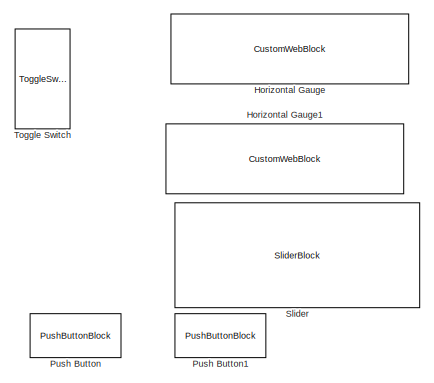
[diagram: root canvas - part 1/3, top left region]
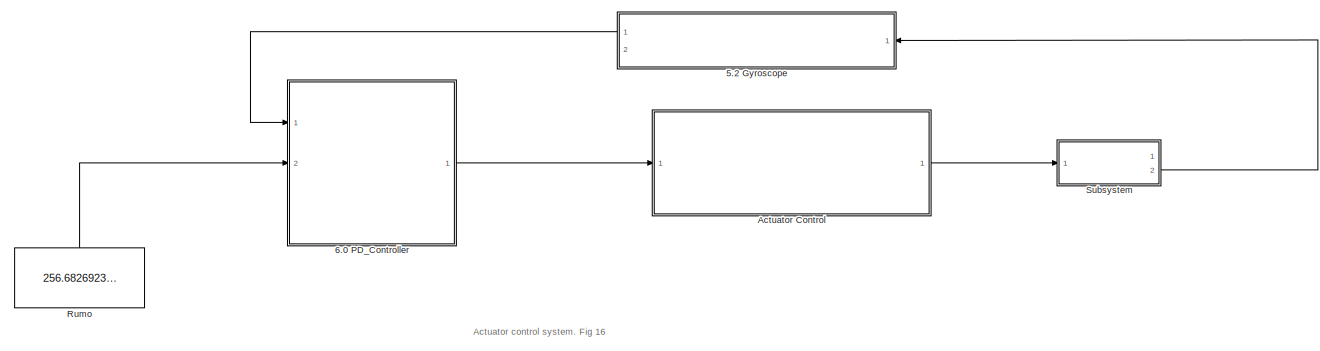
[diagram: root canvas - part 2/3, central region]
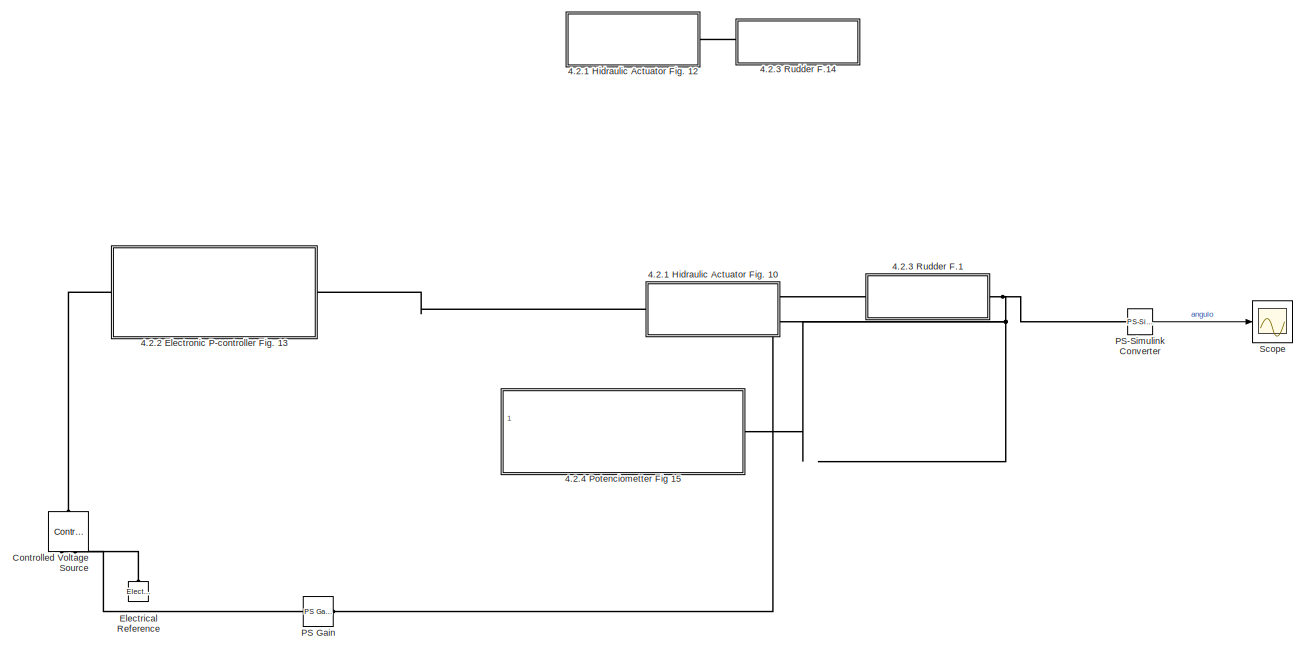
[diagram: root canvas - part 3/3, bottom right region]
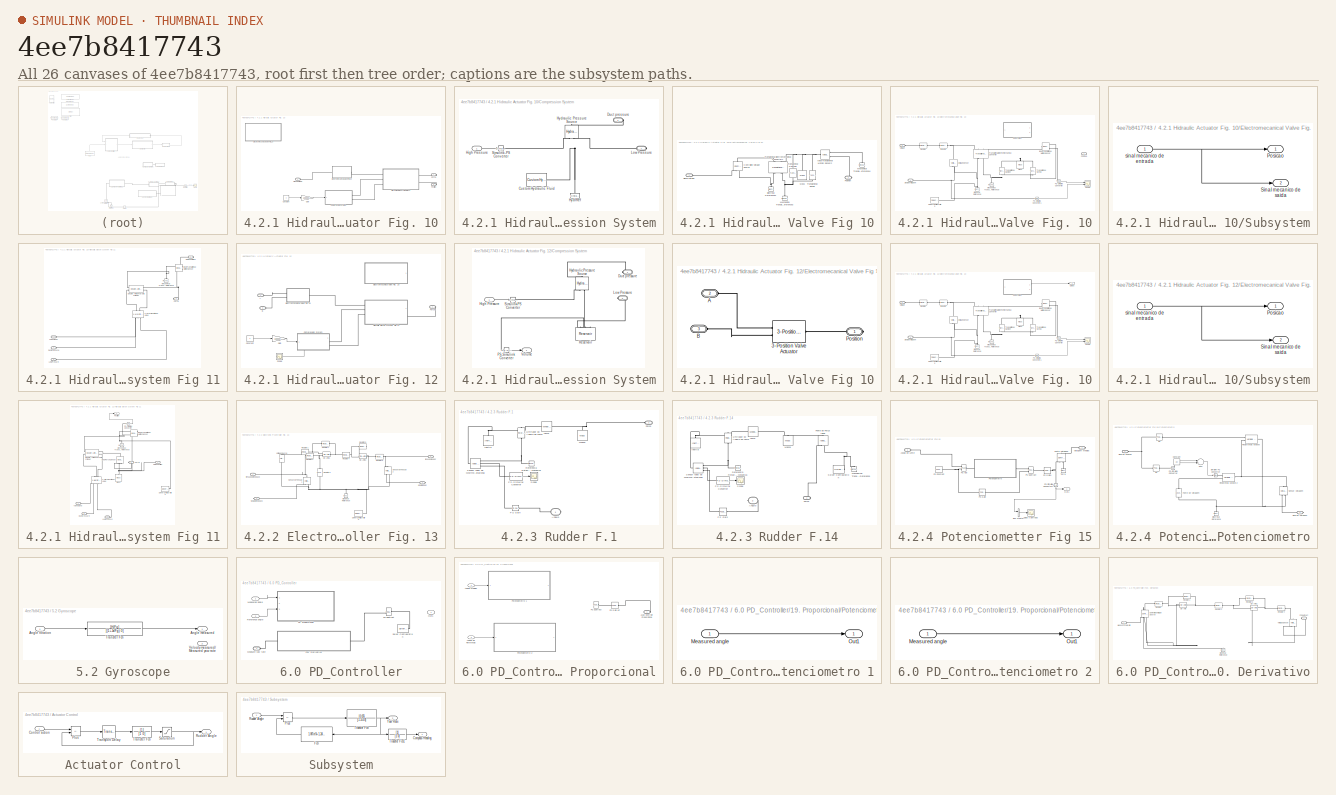
[diagram: thumbnail index - all 26 canvases of the model, root first then tree order]
MODEL slx_4ee7b8417743
KIND model
CONFIG AbsTol = auto
CONFIG EnableMultiTasking = off
CONFIG FixedStep = auto
CONFIG MaxStep = auto
CONFIG MinStep = auto
CONFIG RelTol = 1e-3
CONFIG SampleTimeConstraint = Unconstrained
CONFIG Solver = VariableStepAuto
CONFIG SolverName = VariableStepAuto
CONFIG StartTime = 0.0
CONFIG StopTime = 10.0
BLOCK [SubSystem] 4.2.1 Hidraulic Actuator Fig. 10
  Ports = [0, 0, 0, 0, 0, 1, 2]
  RequestExecContextInheritance = off
BLOCK [SubSystem] 4.2.1 Hidraulic Actuator Fig. 10/Compression System
  Ports = [1, 0, 0, 0, 0, 0, 2]
  RequestExecContextInheritance = off
BLOCK [Reference] 4.2.1 Hidraulic Actuator Fig. 10/Compression System/Custom Hydraulic Fluid  REF=fl_lib/Hydraulic/Hydraulic Utilities/Custom Hydraulic
Fluid
  Ports = [0, 0, 0, 0, 0, 0, 1]
  SourceBlock = fl_lib/Hydraulic/Hydraulic Utilities/Custom Hydraulic\nFluid
  SourceProductBaseCode = SS
  SourceType = Custom Hydraulic\nFluid
BLOCK [PMIOPort] 4.2.1 Hidraulic Actuator Fig. 10/Compression System/Duct pressure
  NameLocation = top
  Side = Right
BLOCK [Inport] 4.2.1 Hidraulic Actuator Fig. 10/Compression System/High Pressure
BLOCK [Reference] 4.2.1 Hidraulic Actuator Fig. 10/Compression System/HydrRef  REF=fl_lib/Hydraulic/Hydraulic Elements/Hydraulic Reference
  NameLocation = right
  Ports = [0, 0, 0, 0, 0, 1]
  SourceBlock = fl_lib/Hydraulic/Hydraulic Elements/Hydraulic Reference
  SourceProductName = Foundation Library
  SourceType = Hydraulic Reference
BLOCK [Reference] 4.2.1 Hidraulic Actuator Fig. 10/Compression System/Hydraulic Pressure Source  REF=fl_lib/Hydraulic/Hydraulic Sources/Hydraulic Pressure
Source
  NameLocation = right
  Ports = [0, 0, 0, 0, 0, 1, 2]
  SourceBlock = fl_lib/Hydraulic/Hydraulic Sources/Hydraulic Pressure\nSource
  SourceProductBaseCode = SS
  SourceType = Hydraulic Pressure\nSource
BLOCK [PMIOPort] 4.2.1 Hidraulic Actuator Fig. 10/Compression System/Low Pressure
  NameLocation = top
  Port = 2
  Side = Right
BLOCK [Reference] 4.2.1 Hidraulic Actuator Fig. 10/Compression System/Simulink-PS Converter  REF=nesl_utility/Simulink-PS
Converter
  Ports = [1, 0, 0, 0, 0, 0, 1]
  SourceBlock = nesl_utility/Simulink-PS\nConverter
  SourceProductBaseCode = SS
  SourceType = Simulink-PS\nConverter
BLOCK [Constant] 4.2.1 Hidraulic Actuator Fig. 10/Constant
BLOCK [SubSystem] 4.2.1 Hidraulic Actuator Fig. 10/Electromecanical Valve Fig 10
  Ports = [0, 0, 0, 0, 0, 1, 1]
  RequestExecContextInheritance = off
BLOCK [Reference] 4.2.1 Hidraulic Actuator Fig. 10/Electromecanical Valve Fig 10/Controlled Voltage Source  REF=fl_lib/Electrical/Electrical Sources/Controlled Voltage
Source
  NameLocation = right
  Ports = [0, 0, 0, 0, 0, 1, 2]
  SourceBlock = fl_lib/Electrical/Electrical Sources/Controlled Voltage\nSource
  SourceProductBaseCode = SS
  SourceType = Controlled Voltage\nSource
BLOCK [Reference] 4.2.1 Hidraulic Actuator Fig. 10/Electromecanical Valve Fig 10/Electrical Reference1  REF=fl_lib/Electrical/Electrical Elements/Electrical Reference
  NameLocation = right
  Ports = [0, 0, 0, 0, 0, 1]
  SourceBlock = fl_lib/Electrical/Electrical Elements/Electrical Reference
  SourceProductBaseCode = SS
  SourceType = Electrical Reference
BLOCK [Reference] 4.2.1 Hidraulic Actuator Fig. 10/Electromecanical Valve Fig 10/Ideal Translational Motion Sensor2  REF=fl_lib/Mechanical/Mechanical Sensors/Ideal Translational
Motion Sensor
  Ports = [0, 0, 0, 0, 0, 1, 3]
  SourceBlock = fl_lib/Mechanical/Mechanical Sensors/Ideal Translational\nMotion Sensor
  SourceProductBaseCode = SS
  SourceType = Ideal Translational\nMotion Sensor
BLOCK [Reference] 4.2.1 Hidraulic Actuator Fig. 10/Electromecanical Valve Fig 10/Mass  REF=fl_lib/Mechanical/Translational
Elements/Mass
  NameLocation = right
  Ports = [0, 0, 0, 0, 0, 1]
  SourceBlock = fl_lib/Mechanical/Translational\nElements/Mass
  SourceProductBaseCode = SS
  SourceType = Mass
BLOCK [Reference] 4.2.1 Hidraulic Actuator Fig. 10/Electromecanical Valve Fig 10/Mechanical Translational Reference3  REF=fl_lib/Mechanical/Translational
Elements/Mechanical
Translational
Reference
  NameLocation = right
  Ports = [0, 0, 0, 0, 0, 1]
  SourceBlock = fl_lib/Mechanical/Translational\nElements/Mechanical\nTranslational\nReference
  SourceProductBaseCode = SS
  SourceType = Mechanical\nTranslational\nReference
BLOCK [Reference] 4.2.1 Hidraulic Actuator Fig. 10/Electromecanical Valve Fig 10/Mechanical Translational Reference4  REF=fl_lib/Mechanical/Translational
Elements/Mechanical
Translational
Reference
  NameLocation = right
  Ports = [0, 0, 0, 0, 0, 1]
  SourceBlock = fl_lib/Mechanical/Translational\nElements/Mechanical\nTranslational\nReference
  SourceProductBaseCode = SS
  SourceType = Mechanical\nTranslational\nReference
BLOCK [PMIOPort] 4.2.1 Hidraulic Actuator Fig. 10/Electromecanical Valve Fig 10/Position
  NameLocation = top
  Port = 2
  Side = Right
BLOCK [PMIOPort] 4.2.1 Hidraulic Actuator Fig. 10/Electromecanical Valve Fig 10/Signal voltage
  Side = Left
BLOCK [Reference] 4.2.1 Hidraulic Actuator Fig. 10/Electromecanical Valve Fig 10/Translational Damper  REF=sdl_lib/Couplings & Drives/Springs & Dampers/Translational Damper
  NameLocation = left
  Ports = [0, 0, 0, 0, 0, 1, 1]
  SourceBlock = sdl_lib/Couplings & Drives/Springs & Dampers/Translational Damper
  SourceProductBaseCode = LD
  SourceType = Translational Damper
BLOCK [Reference] 4.2.1 Hidraulic Actuator Fig. 10/Electromecanical Valve Fig 10/Translational Electromechanical Converter1  REF=fl_lib/Electrical/Electrical Elements/Translational
Electromechanical
Converter
  NameLocation = right
  Ports = [0, 0, 0, 0, 0, 2, 2]
  SourceBlock = fl_lib/Electrical/Electrical Elements/Translational\nElectromechanical\nConverter
  SourceProductBaseCode = SS
  SourceType = Translational\nElectromechanical\nConverter
BLOCK [Reference] 4.2.1 Hidraulic Actuator Fig. 10/Electromecanical Valve Fig 10/Translational Spring  REF=fl_lib/Mechanical/Translational
Elements/Translational Spring
  NameLocation = left
  Ports = [0, 0, 0, 0, 0, 1, 1]
  SourceBlock = fl_lib/Mechanical/Translational\nElements/Translational Spring
  SourceProductBaseCode = SS
  SourceType = Translational Spring
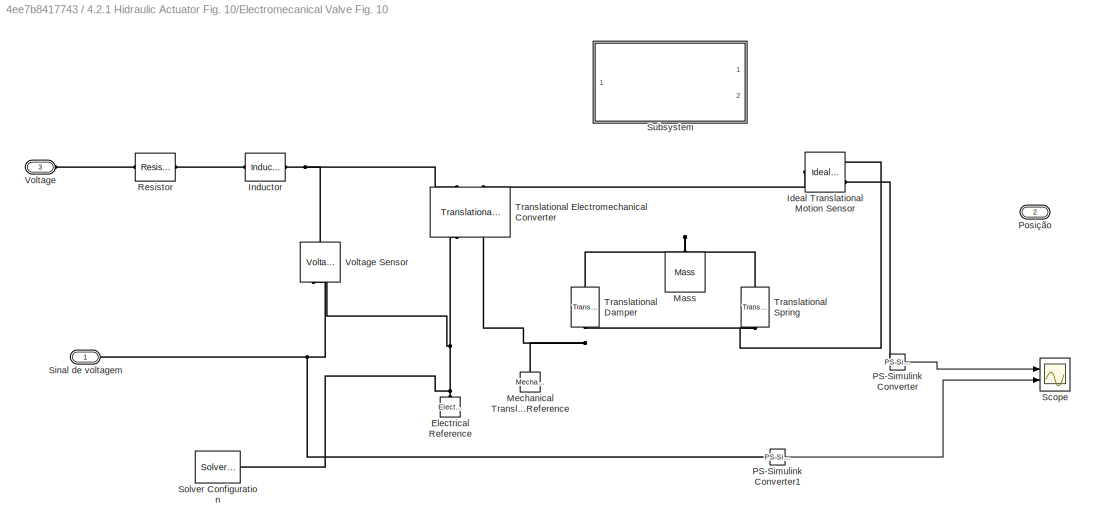
BLOCK [SubSystem] 4.2.1 Hidraulic Actuator Fig. 10/Electromecanical Valve Fig. 10
  Commented = on
  Ports = [0, 0, 0, 0, 0, 2, 1]
  RequestExecContextInheritance = off
BLOCK [Reference] 4.2.1 Hidraulic Actuator Fig. 10/Electromecanical Valve Fig. 10/Electrical Reference  REF=fl_lib/Electrical/Electrical Elements/Electrical Reference
  NameLocation = right
  Ports = [0, 0, 0, 0, 0, 1]
  SourceBlock = fl_lib/Electrical/Electrical Elements/Electrical Reference
  SourceProductBaseCode = SS
  SourceType = Electrical Reference
BLOCK [Reference] 4.2.1 Hidraulic Actuator Fig. 10/Electromecanical Valve Fig. 10/Ideal Translational Motion Sensor  REF=fl_lib/Mechanical/Mechanical Sensors/Ideal Translational
Motion Sensor
  NameLocation = top
  Ports = [0, 0, 0, 0, 0, 1, 3]
  SourceBlock = fl_lib/Mechanical/Mechanical Sensors/Ideal Translational\nMotion Sensor
  SourceProductBaseCode = SS
  SourceType = Ideal Translational\nMotion Sensor
BLOCK [Reference] 4.2.1 Hidraulic Actuator Fig. 10/Electromecanical Valve Fig. 10/Inductor  REF=ee_lib/Passive/Inductor
  Ports = [0, 0, 0, 0, 0, 1, 1]
  SourceBlock = ee_lib/Passive/Inductor
  SourceProductBaseCode = PS
  SourceType = Inductor
BLOCK [Reference] 4.2.1 Hidraulic Actuator Fig. 10/Electromecanical Valve Fig. 10/Mass  REF=fl_lib/Mechanical/Translational
Elements/Mass
  NameLocation = right
  Ports = [0, 0, 0, 0, 0, 1]
  SourceBlock = fl_lib/Mechanical/Translational\nElements/Mass
  SourceProductBaseCode = SS
  SourceType = Mass
BLOCK [Reference] 4.2.1 Hidraulic Actuator Fig. 10/Electromecanical Valve Fig. 10/Mechanical Translational Reference  REF=fl_lib/Mechanical/Translational
Elements/Mechanical
Translational
Reference
  NameLocation = right
  Ports = [0, 0, 0, 0, 0, 1]
  SourceBlock = fl_lib/Mechanical/Translational\nElements/Mechanical\nTranslational\nReference
  SourceProductBaseCode = SS
  SourceType = Mechanical\nTranslational\nReference
BLOCK [Reference] 4.2.1 Hidraulic Actuator Fig. 10/Electromecanical Valve Fig. 10/PS-Simulink Converter  REF=nesl_utility/PS-Simulink
Converter
  Ports = [0, 1, 0, 0, 0, 1]
  SourceBlock = nesl_utility/PS-Simulink\nConverter
  SourceProductBaseCode = SS
  SourceType = PS-Simulink\nConverter
BLOCK [Reference] 4.2.1 Hidraulic Actuator Fig. 10/Electromecanical Valve Fig. 10/PS-Simulink Converter1  REF=nesl_utility/PS-Simulink
Converter
  Ports = [0, 1, 0, 0, 0, 1]
  SourceBlock = nesl_utility/PS-Simulink\nConverter
  SourceProductBaseCode = SS
  SourceType = PS-Simulink\nConverter
BLOCK [PMIOPort] 4.2.1 Hidraulic Actuator Fig. 10/Electromecanical Valve Fig. 10/Posição
  Port = 2
  Side = Right
BLOCK [Reference] 4.2.1 Hidraulic Actuator Fig. 10/Electromecanical Valve Fig. 10/Resistor  REF=fl_lib/Electrical/Electrical Elements/Resistor
  Ports = [0, 0, 0, 0, 0, 1, 1]
  SourceBlock = fl_lib/Electrical/Electrical Elements/Resistor
  SourceProductBaseCode = SS
  SourceType = Resistor
BLOCK [Scope] 4.2.1 Hidraulic Actuator Fig. 10/Electromecanical Valve Fig. 10/Scope
  Floating = off
  NumInputPorts = 2
  Ports = [2]
  ScopeSpecificationString = Simulink.scopes.TimeScopeBlockCfg('CurrentConfiguration', extmgr.ConfigurationSet(extmgr.Configuration('Core','General UI',true),extmgr.Configuration('Core','Source UI',true),extmgr.Configuration('Sources','WiredSimulink',true),extmgr.Configuration('Visuals','Time Domain',true,'SerializedDisplays',{struct('MinYLimReal','-6.25','MaxYLimReal','56.25','YLabelReal','','MinYLimMag','0.00000','MaxYLimMa...<+1359ch>
BLOCK [PMIOPort] 4.2.1 Hidraulic Actuator Fig. 10/Electromecanical Valve Fig. 10/Sinal de voltagem
  Side = Left
BLOCK [Reference] 4.2.1 Hidraulic Actuator Fig. 10/Electromecanical Valve Fig. 10/Solver Configuration  REF=nesl_utility/Solver
Configuration
  Ports = [0, 0, 0, 0, 0, 0, 1]
  SourceBlock = nesl_utility/Solver\nConfiguration
  SourceProductBaseCode = SS
  SourceType = Solver\nConfiguration
BLOCK [SubSystem] 4.2.1 Hidraulic Actuator Fig. 10/Electromecanical Valve Fig. 10/Subsystem
  Ports = [1, 2]
  RequestExecContextInheritance = off
BLOCK [Outport] 4.2.1 Hidraulic Actuator Fig. 10/Electromecanical Valve Fig. 10/Subsystem/Posicao
BLOCK [Outport] 4.2.1 Hidraulic Actuator Fig. 10/Electromecanical Valve Fig. 10/Subsystem/Sinal mecanico de saida
  Port = 2
BLOCK [Inport] 4.2.1 Hidraulic Actuator Fig. 10/Electromecanical Valve Fig. 10/Subsystem/sinal mecanico de entrada
BLOCK [Reference] 4.2.1 Hidraulic Actuator Fig. 10/Electromecanical Valve Fig. 10/Translational Damper  REF=sdl_lib/Couplings & Drives/Springs & Dampers/Translational Damper
  NameLocation = right
  Ports = [0, 0, 0, 0, 0, 1, 1]
  SourceBlock = sdl_lib/Couplings & Drives/Springs & Dampers/Translational Damper
  SourceProductBaseCode = LD
  SourceType = Translational Damper
BLOCK [Reference] 4.2.1 Hidraulic Actuator Fig. 10/Electromecanical Valve Fig. 10/Translational Electromechanical Converter  REF=fl_lib/Electrical/Electrical Elements/Translational
Electromechanical
Converter
  NameLocation = right
  Ports = [0, 0, 0, 0, 0, 2, 2]
  SourceBlock = fl_lib/Electrical/Electrical Elements/Translational\nElectromechanical\nConverter
  SourceProductBaseCode = SS
  SourceType = Translational\nElectromechanical\nConverter
BLOCK [Reference] 4.2.1 Hidraulic Actuator Fig. 10/Electromecanical Valve Fig. 10/Translational Spring  REF=fl_lib/Mechanical/Translational
Elements/Translational Spring
  NameLocation = right
  Ports = [0, 0, 0, 0, 0, 1, 1]
  SourceBlock = fl_lib/Mechanical/Translational\nElements/Translational Spring
  SourceProductBaseCode = SS
  SourceType = Translational Spring
BLOCK [PMIOPort] 4.2.1 Hidraulic Actuator Fig. 10/Electromecanical Valve Fig. 10/Voltage
  NameLocation = right
  Port = 3
  Side = Left
BLOCK [Reference] 4.2.1 Hidraulic Actuator Fig. 10/Electromecanical Valve Fig. 10/Voltage Sensor  REF=fl_lib/Electrical/Electrical Sensors/Voltage Sensor
  NameLocation = right
  Ports = [0, 0, 0, 0, 0, 1, 2]
  SourceBlock = fl_lib/Electrical/Electrical Sensors/Voltage Sensor
  SourceProductBaseCode = SS
  SourceType = Voltage Sensor
BLOCK [PMIOPort] 4.2.1 Hidraulic Actuator Fig. 10/Force
  NameLocation = top
  Side = Right
BLOCK [Gain] 4.2.1 Hidraulic Actuator Fig. 10/Gain
  Gain = 100000
BLOCK [SubSystem] 4.2.1 Hidraulic Actuator Fig. 10/Hidraulic piston system Fig 11
  Ports = [0, 0, 0, 0, 0, 3, 2]
  RequestExecContextInheritance = off
BLOCK [Reference] 4.2.1 Hidraulic Actuator Fig. 10/Hidraulic piston system Fig 11/4-Way Directional Valve  REF=sh_lib/Valves/Directional Valves/4-Way Directional
Valve
  NameLocation = right
  Ports = [0, 0, 0, 0, 0, 2, 3]
  SourceBlock = sh_lib/Valves/Directional Valves/4-Way Directional\nValve
  SourceProductBaseCode = SH
  SourceType = 4-Way Directional\nValve
BLOCK [Reference] 4.2.1 Hidraulic Actuator Fig. 10/Hidraulic piston system Fig 11/Double-Acting Hydraulic Cylinder  REF=sh_lib/Hydraulic Cylinders/Double-Acting
Hydraulic Cylinder
  Ports = [0, 0, 0, 0, 0, 2, 2]
  SourceBlock = sh_lib/Hydraulic Cylinders/Double-Acting\nHydraulic Cylinder
  SourceProductBaseCode = SH
  SourceType = Double-Acting\nHydraulic Cylinder
BLOCK [PMIOPort] 4.2.1 Hidraulic Actuator Fig. 10/Hidraulic piston system Fig 11/Duct pressure
  Port = 2
  Side = Left
BLOCK [PMIOPort] 4.2.1 Hidraulic Actuator Fig. 10/Hidraulic piston system Fig 11/Force
  Port = 4
  Side = Right
BLOCK [Reference] 4.2.1 Hidraulic Actuator Fig. 10/Hidraulic piston system Fig 11/Ideal Translational Motion Sensor  REF=fl_lib/Mechanical/Mechanical Sensors/Ideal Translational
Motion Sensor
  NameLocation = top
  Ports = [0, 0, 0, 0, 0, 1, 3]
  SourceBlock = fl_lib/Mechanical/Mechanical Sensors/Ideal Translational\nMotion Sensor
  SourceProductBaseCode = SS
  SourceType = Ideal Translational\nMotion Sensor
BLOCK [PMIOPort] 4.2.1 Hidraulic Actuator Fig. 10/Hidraulic piston system Fig 11/Low Presure
  Port = 3
  Side = Left
BLOCK [Reference] 4.2.1 Hidraulic Actuator Fig. 10/Hidraulic piston system Fig 11/Mechanical Translational Reference  REF=fl_lib/Mechanical/Translational
Elements/Mechanical
Translational
Reference
  NameLocation = right
  Ports = [0, 0, 0, 0, 0, 1]
  SourceBlock = fl_lib/Mechanical/Translational\nElements/Mechanical\nTranslational\nReference
  SourceProductBaseCode = SS
  SourceType = Mechanical\nTranslational\nReference
BLOCK [PMIOPort] 4.2.1 Hidraulic Actuator Fig. 10/Hidraulic piston system Fig 11/Piston Position1
  NameLocation = top
  Port = 5
  Side = Right
BLOCK [PMIOPort] 4.2.1 Hidraulic Actuator Fig. 10/Hidraulic piston system Fig 11/valve signal
  Side = Left
BLOCK [PMIOPort] 4.2.1 Hidraulic Actuator Fig. 10/Position
  NameLocation = top
  Port = 3
  Side = Right
BLOCK [PMIOPort] 4.2.1 Hidraulic Actuator Fig. 10/Signal Voltage
  Port = 2
  Side = Left
BLOCK [SubSystem] 4.2.1 Hidraulic Actuator Fig. 12
  Commented = on
  Ports = [0, 0, 0, 0, 0, 2, 1]
  RequestExecContextInheritance = off
BLOCK [PMIOPort] 4.2.1 Hidraulic Actuator Fig. 12/A
  Port = 2
  Side = Left
BLOCK [PMIOPort] 4.2.1 Hidraulic Actuator Fig. 12/B
  Port = 3
  Side = Left
BLOCK [SubSystem] 4.2.1 Hidraulic Actuator Fig. 12/Compression System
  PortSchema = {"entries":[{"content":{"sides":[{"content":{"connectorIds":["In1","Out1"]},"type":"ConnectorPlacement.EquallySpacedRectSide","uuid":"ff54fd0c-2c6b-430a-9f1f-f0563a8598f3"},{"content":{"connectorIds":["RConn1","RConn2"],"side":"RIGHT"},"type":"ConnectorPlacement.EquallySpacedRectSide","uuid":"f72ac77c-8f3c-459c-92f0-6bc3494e8c99"},{"content":{"connectorIds":[],"side":"TOP"},"type":"ConnectorPlacem...<+258ch>
  Ports = [1, 1, 0, 0, 0, 0, 2]
  RequestExecContextInheritance = off
BLOCK [PMIOPort] 4.2.1 Hidraulic Actuator Fig. 12/Compression System/Duct pressure
  Side = Right
BLOCK [Inport] 4.2.1 Hidraulic Actuator Fig. 12/Compression System/High Pressure
BLOCK [Reference] 4.2.1 Hidraulic Actuator Fig. 12/Compression System/Hydraulic Pressure Source  REF=fl_lib/Hydraulic/Hydraulic Sources/Hydraulic Pressure
Source
  NameLocation = right
  Ports = [0, 0, 0, 0, 0, 1, 2]
  SourceBlock = fl_lib/Hydraulic/Hydraulic Sources/Hydraulic Pressure\nSource
  SourceProductBaseCode = SS
  SourceType = Hydraulic Pressure\nSource
BLOCK [PMIOPort] 4.2.1 Hidraulic Actuator Fig. 12/Compression System/Low Pressure
  Port = 2
  Side = Right
BLOCK [Reference] 4.2.1 Hidraulic Actuator Fig. 12/Compression System/PS-Simulink Converter  REF=nesl_utility/PS-Simulink
Converter
  Ports = [0, 1, 0, 0, 0, 1]
  SourceBlock = nesl_utility/PS-Simulink\nConverter
  SourceProductBaseCode = SS
  SourceType = PS-Simulink\nConverter
BLOCK [Reference] 4.2.1 Hidraulic Actuator Fig. 12/Compression System/Reservoir  REF=sh_lib/Hydraulic Utilities/Reservoir
  NameLocation = right
  Ports = [0, 0, 0, 0, 0, 3]
  SourceBlock = sh_lib/Hydraulic Utilities/Reservoir
  SourceProductBaseCode = SH
  SourceType = Reservoir
BLOCK [Reference] 4.2.1 Hidraulic Actuator Fig. 12/Compression System/Simulink-PS Converter  REF=nesl_utility/Simulink-PS
Converter
  Ports = [1, 0, 0, 0, 0, 0, 1]
  SourceBlock = nesl_utility/Simulink-PS\nConverter
  SourceProductBaseCode = SS
  SourceType = Simulink-PS\nConverter
BLOCK [Outport] 4.2.1 Hidraulic Actuator Fig. 12/Compression System/Volume
BLOCK [Constant] 4.2.1 Hidraulic Actuator Fig. 12/Constant
BLOCK [SubSystem] 4.2.1 Hidraulic Actuator Fig. 12/Electromecanical Valve Fig 10
  Ports = [0, 0, 0, 0, 0, 2, 1]
  RequestExecContextInheritance = off
BLOCK [Reference] 4.2.1 Hidraulic Actuator Fig. 12/Electromecanical Valve Fig 10/3-Position Valve Actuator  REF=sh_lib/Valves/Valve Actuators/3-Position Valve
Actuator
  Ports = [0, 0, 0, 0, 0, 2, 1]
  SourceBlock = sh_lib/Valves/Valve Actuators/3-Position Valve\nActuator
  SourceProductBaseCode = SH
  SourceType = 3-Position Valve\nActuator
BLOCK [PMIOPort] 4.2.1 Hidraulic Actuator Fig. 12/Electromecanical Valve Fig 10/A
  Port = 2
  Side = Left
BLOCK [PMIOPort] 4.2.1 Hidraulic Actuator Fig. 12/Electromecanical Valve Fig 10/B
  Port = 3
  Side = Left
BLOCK [PMIOPort] 4.2.1 Hidraulic Actuator Fig. 12/Electromecanical Valve Fig 10/Position
  NameLocation = top
  Side = Right
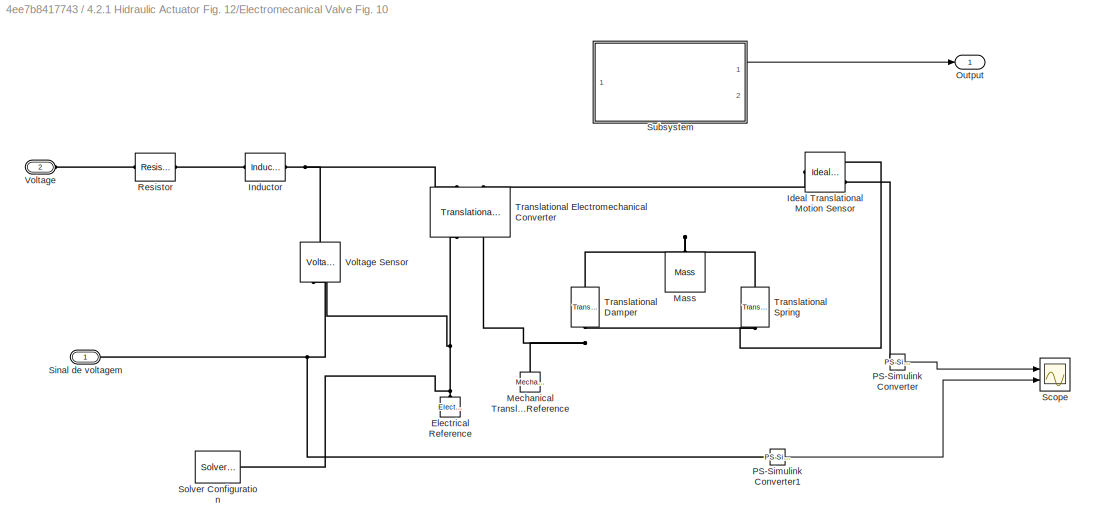
BLOCK [SubSystem] 4.2.1 Hidraulic Actuator Fig. 12/Electromecanical Valve Fig. 10
  Commented = on
  Ports = [0, 1, 0, 0, 0, 2]
  RequestExecContextInheritance = off
BLOCK [Reference] 4.2.1 Hidraulic Actuator Fig. 12/Electromecanical Valve Fig. 10/Electrical Reference  REF=fl_lib/Electrical/Electrical Elements/Electrical Reference
  NameLocation = right
  Ports = [0, 0, 0, 0, 0, 1]
  SourceBlock = fl_lib/Electrical/Electrical Elements/Electrical Reference
  SourceProductBaseCode = SS
  SourceType = Electrical Reference
BLOCK [Reference] 4.2.1 Hidraulic Actuator Fig. 12/Electromecanical Valve Fig. 10/Ideal Translational Motion Sensor  REF=fl_lib/Mechanical/Mechanical Sensors/Ideal Translational
Motion Sensor
  NameLocation = top
  Ports = [0, 0, 0, 0, 0, 1, 3]
  SourceBlock = fl_lib/Mechanical/Mechanical Sensors/Ideal Translational\nMotion Sensor
  SourceProductBaseCode = SS
  SourceType = Ideal Translational\nMotion Sensor
BLOCK [Reference] 4.2.1 Hidraulic Actuator Fig. 12/Electromecanical Valve Fig. 10/Inductor  REF=ee_lib/Passive/Inductor
  Ports = [0, 0, 0, 0, 0, 1, 1]
  SourceBlock = ee_lib/Passive/Inductor
  SourceProductBaseCode = PS
  SourceType = Inductor
BLOCK [Reference] 4.2.1 Hidraulic Actuator Fig. 12/Electromecanical Valve Fig. 10/Mass  REF=fl_lib/Mechanical/Translational
Elements/Mass
  NameLocation = right
  Ports = [0, 0, 0, 0, 0, 1]
  SourceBlock = fl_lib/Mechanical/Translational\nElements/Mass
  SourceProductBaseCode = SS
  SourceType = Mass
BLOCK [Reference] 4.2.1 Hidraulic Actuator Fig. 12/Electromecanical Valve Fig. 10/Mechanical Translational Reference  REF=fl_lib/Mechanical/Translational
Elements/Mechanical
Translational
Reference
  NameLocation = right
  Ports = [0, 0, 0, 0, 0, 1]
  SourceBlock = fl_lib/Mechanical/Translational\nElements/Mechanical\nTranslational\nReference
  SourceProductBaseCode = SS
  SourceType = Mechanical\nTranslational\nReference
BLOCK [Outport] 4.2.1 Hidraulic Actuator Fig. 12/Electromecanical Valve Fig. 10/Output
BLOCK [Reference] 4.2.1 Hidraulic Actuator Fig. 12/Electromecanical Valve Fig. 10/PS-Simulink Converter  REF=nesl_utility/PS-Simulink
Converter
  Ports = [0, 1, 0, 0, 0, 1]
  SourceBlock = nesl_utility/PS-Simulink\nConverter
  SourceProductBaseCode = SS
  SourceType = PS-Simulink\nConverter
BLOCK [Reference] 4.2.1 Hidraulic Actuator Fig. 12/Electromecanical Valve Fig. 10/PS-Simulink Converter1  REF=nesl_utility/PS-Simulink
Converter
  Ports = [0, 1, 0, 0, 0, 1]
  SourceBlock = nesl_utility/PS-Simulink\nConverter
  SourceProductBaseCode = SS
  SourceType = PS-Simulink\nConverter
BLOCK [Reference] 4.2.1 Hidraulic Actuator Fig. 12/Electromecanical Valve Fig. 10/Resistor  REF=fl_lib/Electrical/Electrical Elements/Resistor
  Ports = [0, 0, 0, 0, 0, 1, 1]
  SourceBlock = fl_lib/Electrical/Electrical Elements/Resistor
  SourceProductBaseCode = SS
  SourceType = Resistor
BLOCK [Scope] 4.2.1 Hidraulic Actuator Fig. 12/Electromecanical Valve Fig. 10/Scope
  Floating = off
  NumInputPorts = 2
  Ports = [2]
  ScopeSpecificationString = Simulink.scopes.TimeScopeBlockCfg('CurrentConfiguration', extmgr.ConfigurationSet(extmgr.Configuration('Core','General UI',true),extmgr.Configuration('Core','Source UI',true),extmgr.Configuration('Sources','WiredSimulink',true),extmgr.Configuration('Visuals','Time Domain',true,'SerializedDisplays',{struct('MinYLimReal','-6.25','MaxYLimReal','56.25','YLabelReal','','MinYLimMag','0.00000','MaxYLimMa...<+1359ch>
BLOCK [PMIOPort] 4.2.1 Hidraulic Actuator Fig. 12/Electromecanical Valve Fig. 10/Sinal de voltagem
  Side = Left
BLOCK [Reference] 4.2.1 Hidraulic Actuator Fig. 12/Electromecanical Valve Fig. 10/Solver Configuration  REF=nesl_utility/Solver
Configuration
  Ports = [0, 0, 0, 0, 0, 0, 1]
  SourceBlock = nesl_utility/Solver\nConfiguration
  SourceProductBaseCode = SS
  SourceType = Solver\nConfiguration
BLOCK [SubSystem] 4.2.1 Hidraulic Actuator Fig. 12/Electromecanical Valve Fig. 10/Subsystem
  Ports = [1, 2]
  RequestExecContextInheritance = off
BLOCK [Outport] 4.2.1 Hidraulic Actuator Fig. 12/Electromecanical Valve Fig. 10/Subsystem/Posicao
BLOCK [Outport] 4.2.1 Hidraulic Actuator Fig. 12/Electromecanical Valve Fig. 10/Subsystem/Sinal mecanico de saida
  Port = 2
BLOCK [Inport] 4.2.1 Hidraulic Actuator Fig. 12/Electromecanical Valve Fig. 10/Subsystem/sinal mecanico de entrada
BLOCK [Reference] 4.2.1 Hidraulic Actuator Fig. 12/Electromecanical Valve Fig. 10/Translational Damper  REF=sdl_lib/Couplings & Drives/Springs & Dampers/Translational Damper
  NameLocation = right
  Ports = [0, 0, 0, 0, 0, 1, 1]
  SourceBlock = sdl_lib/Couplings & Drives/Springs & Dampers/Translational Damper
  SourceProductBaseCode = LD
  SourceType = Translational Damper
BLOCK [Reference] 4.2.1 Hidraulic Actuator Fig. 12/Electromecanical Valve Fig. 10/Translational Electromechanical Converter  REF=fl_lib/Electrical/Electrical Elements/Translational
Electromechanical
Converter
  NameLocation = right
  Ports = [0, 0, 0, 0, 0, 2, 2]
  SourceBlock = fl_lib/Electrical/Electrical Elements/Translational\nElectromechanical\nConverter
  SourceProductBaseCode = SS
  SourceType = Translational\nElectromechanical\nConverter
BLOCK [Reference] 4.2.1 Hidraulic Actuator Fig. 12/Electromecanical Valve Fig. 10/Translational Spring  REF=fl_lib/Mechanical/Translational
Elements/Translational Spring
  NameLocation = right
  Ports = [0, 0, 0, 0, 0, 1, 1]
  SourceBlock = fl_lib/Mechanical/Translational\nElements/Translational Spring
  SourceProductBaseCode = SS
  SourceType = Translational Spring
BLOCK [PMIOPort] 4.2.1 Hidraulic Actuator Fig. 12/Electromecanical Valve Fig. 10/Voltage
  NameLocation = right
  Port = 2
  Side = Left
BLOCK [Reference] 4.2.1 Hidraulic Actuator Fig. 12/Electromecanical Valve Fig. 10/Voltage Sensor  REF=fl_lib/Electrical/Electrical Sensors/Voltage Sensor
  NameLocation = right
  Ports = [0, 0, 0, 0, 0, 1, 2]
  SourceBlock = fl_lib/Electrical/Electrical Sensors/Voltage Sensor
  SourceProductBaseCode = SS
  SourceType = Voltage Sensor
BLOCK [PMIOPort] 4.2.1 Hidraulic Actuator Fig. 12/Force
  NameLocation = top
  Side = Right
BLOCK [Gain] 4.2.1 Hidraulic Actuator Fig. 12/Gain
  Gain = 100000
BLOCK [SubSystem] 4.2.1 Hidraulic Actuator Fig. 12/Hidraulic piston system Fig 11
  PortSchema = {"entries":[{"content":{"sides":[{"content":{"connectorIds":["LConn1","LConn2","LConn3","LConn4"]},"type":"ConnectorPlacement.EquallySpacedRectSide","uuid":"58848f98-8fa7-448d-abe7-e66415c9c3f6"},{"content":{"connectorIds":["RConn1","Out1"],"side":"RIGHT"},"type":"ConnectorPlacement.EquallySpacedRectSide","uuid":"7ff57e53-e11b-42b7-8719-2935c76f3d9a"},{"content":{"connectorIds":[],"side":"TOP"},"t...<+279ch>
  Ports = [0, 1, 0, 0, 0, 4, 1]
  RequestExecContextInheritance = off
BLOCK [Reference] 4.2.1 Hidraulic Actuator Fig. 12/Hidraulic piston system Fig 11/4-Way Directional Valve  REF=sh_lib/Valves/Directional Valves/4-Way Directional
Valve
  NameLocation = right
  Ports = [0, 0, 0, 0, 0, 2, 3]
  SourceBlock = sh_lib/Valves/Directional Valves/4-Way Directional\nValve
  SourceProductBaseCode = SH
  SourceType = 4-Way Directional\nValve
BLOCK [Reference] 4.2.1 Hidraulic Actuator Fig. 12/Hidraulic piston system Fig 11/Double-Acting Hydraulic Cylinder  REF=sh_lib/Hydraulic Cylinders/Double-Acting
Hydraulic Cylinder
  Ports = [0, 0, 0, 0, 0, 2, 2]
  SourceBlock = sh_lib/Hydraulic Cylinders/Double-Acting\nHydraulic Cylinder
  SourceProductBaseCode = SH
  SourceType = Double-Acting\nHydraulic Cylinder
BLOCK [PMIOPort] 4.2.1 Hidraulic Actuator Fig. 12/Hidraulic piston system Fig 11/Duct pressure
  NameLocation = left
  Port = 2
  Side = Left
BLOCK [PMIOPort] 4.2.1 Hidraulic Actuator Fig. 12/Hidraulic piston system Fig 11/Force
  Port = 5
  Side = Right
BLOCK [Reference] 4.2.1 Hidraulic Actuator Fig. 12/Hidraulic piston system Fig 11/Ideal Force Sensor  REF=fl_lib/Mechanical/Mechanical Sensors/Ideal Force Sensor
  NameLocation = left
  Ports = [0, 0, 0, 0, 0, 1, 2]
  SourceBlock = fl_lib/Mechanical/Mechanical Sensors/Ideal Force Sensor
  SourceProductBaseCode = SS
  SourceType = Ideal Force Sensor
BLOCK [Reference] 4.2.1 Hidraulic Actuator Fig. 12/Hidraulic piston system Fig 11/Ideal Translational Motion Sensor  REF=fl_lib/Mechanical/Mechanical Sensors/Ideal Translational
Motion Sensor
  NameLocation = top
  Ports = [0, 0, 0, 0, 0, 1, 3]
  SourceBlock = fl_lib/Mechanical/Mechanical Sensors/Ideal Translational\nMotion Sensor
  SourceProductBaseCode = SS
  SourceType = Ideal Translational\nMotion Sensor
BLOCK [PMIOPort] 4.2.1 Hidraulic Actuator Fig. 12/Hidraulic piston system Fig 11/Low Presure
  Port = 3
  Side = Left
BLOCK [Reference] 4.2.1 Hidraulic Actuator Fig. 12/Hidraulic piston system Fig 11/Mass  REF=fl_lib/Mechanical/Translational
Elements/Mass
  NameLocation = right
  Ports = [0, 0, 0, 0, 0, 1]
  SourceBlock = fl_lib/Mechanical/Translational\nElements/Mass
  SourceProductBaseCode = SS
  SourceType = Mass
BLOCK [Reference] 4.2.1 Hidraulic Actuator Fig. 12/Hidraulic piston system Fig 11/Mechanical Translational Reference  REF=fl_lib/Mechanical/Translational
Elements/Mechanical
Translational
Reference
  NameLocation = right
  Ports = [0, 0, 0, 0, 0, 1]
  SourceBlock = fl_lib/Mechanical/Translational\nElements/Mechanical\nTranslational\nReference
  SourceProductBaseCode = SS
  SourceType = Mechanical\nTranslational\nReference
BLOCK [Reference] 4.2.1 Hidraulic Actuator Fig. 12/Hidraulic piston system Fig 11/PS-Simulink Converter  REF=nesl_utility/PS-Simulink
Converter
  Ports = [0, 1, 0, 0, 0, 1]
  SourceBlock = nesl_utility/PS-Simulink\nConverter
  SourceProductBaseCode = SS
  SourceType = PS-Simulink\nConverter
BLOCK [PMIOPort] 4.2.1 Hidraulic Actuator Fig. 12/Hidraulic piston system Fig 11/Piston Position
  NameLocation = top
  Port = 4
  Side = Left
BLOCK [Outport] 4.2.1 Hidraulic Actuator Fig. 12/Hidraulic piston system Fig 11/Position
BLOCK [Reference] 4.2.1 Hidraulic Actuator Fig. 12/Hidraulic piston system Fig 11/Solver Configuration  REF=nesl_utility/Solver
Configuration
  Ports = [0, 0, 0, 0, 0, 0, 1]
  SourceBlock = nesl_utility/Solver\nConfiguration
  SourceProductBaseCode = SS
  SourceType = Solver\nConfiguration
BLOCK [PMIOPort] 4.2.1 Hidraulic Actuator Fig. 12/Hidraulic piston system Fig 11/valve signal
  Side = Left
BLOCK [Scope] 4.2.1 Hidraulic Actuator Fig. 12/Scope
  Floating = off
  NumInputPorts = 1
  Ports = [1]
  ScopeSpecificationString = Simulink.scopes.TimeScopeBlockCfg('CurrentConfiguration', extmgr.ConfigurationSet(extmgr.Configuration('Core','General UI',true),extmgr.Configuration('Core','Source UI',true),extmgr.Configuration('Sources','WiredSimulink',true,'DataLoggingVariableName','ScopeData1'),extmgr.Configuration('Visuals','Time Domain',true,'SerializedDisplays',{struct('MinYLimReal','4.9999921','MaxYLimReal','5.0000009','Y...<+1420ch>
BLOCK [SubSystem] 4.2.2 Electronic P-controller Fig. 13
  PortSchema = {"entries":[{"content":{"sides":[{"content":{"connectorIds":["LConn1"]},"type":"ConnectorPlacement.EquallySpacedRectSide","uuid":"0aa17412-b776-4eb7-801e-4c8f56105439"},{"content":{"connectorIds":["RConn1","RConn2"],"side":"RIGHT"},"type":"ConnectorPlacement.EquallySpacedRectSide","uuid":"381186d2-4bc1-456f-b9d3-6610c6948819"},{"content":{"connectorIds":[],"side":"TOP"},"type":"ConnectorPlacement....<+408ch>
  Ports = [0, 0, 0, 0, 0, 1, 3]
  RequestExecContextInheritance = off
BLOCK [Reference] 4.2.2 Electronic P-controller Fig. 13/Electrical Reference  REF=fl_lib/Electrical/Electrical Elements/Electrical Reference
  NameLocation = right
  Ports = [0, 0, 0, 0, 0, 1]
  SourceBlock = fl_lib/Electrical/Electrical Elements/Electrical Reference
  SourceProductBaseCode = SS
  SourceType = Electrical Reference
BLOCK [Reference] 4.2.2 Electronic P-controller Fig. 13/Op-Amp1  REF=fl_lib/Electrical/Electrical Elements/Op-Amp
  Ports = [0, 0, 0, 0, 0, 2, 1]
  SourceBlock = fl_lib/Electrical/Electrical Elements/Op-Amp
  SourceProductBaseCode = SS
  SourceType = Op-Amp
BLOCK [Reference] 4.2.2 Electronic P-controller Fig. 13/Op-Amp2  REF=fl_lib/Electrical/Electrical Elements/Op-Amp
  Ports = [0, 0, 0, 0, 0, 2, 1]
  SourceBlock = fl_lib/Electrical/Electrical Elements/Op-Amp
  SourceProductBaseCode = SS
  SourceType = Op-Amp
BLOCK [Reference] 4.2.2 Electronic P-controller Fig. 13/Resistor 1  REF=fl_lib/Electrical/Electrical Elements/Resistor
  NameLocation = top
  Ports = [0, 0, 0, 0, 0, 1, 1]
  SourceBlock = fl_lib/Electrical/Electrical Elements/Resistor
  SourceProductBaseCode = SS
  SourceType = Resistor
BLOCK [Reference] 4.2.2 Electronic P-controller Fig. 13/Resistor 2  REF=fl_lib/Electrical/Electrical Elements/Resistor
  Ports = [0, 0, 0, 0, 0, 1, 1]
  SourceBlock = fl_lib/Electrical/Electrical Elements/Resistor
  SourceProductBaseCode = SS
  SourceType = Resistor
BLOCK [Reference] 4.2.2 Electronic P-controller Fig. 13/Resistor 3  REF=fl_lib/Electrical/Electrical Elements/Resistor
  NameLocation = right
  Ports = [0, 0, 0, 0, 0, 1, 1]
  SourceBlock = fl_lib/Electrical/Electrical Elements/Resistor
  SourceProductBaseCode = SS
  SourceType = Resistor
BLOCK [Reference] 4.2.2 Electronic P-controller Fig. 13/Resistor 4  REF=fl_lib/Electrical/Electrical Elements/Resistor
  Ports = [0, 0, 0, 0, 0, 1, 1]
  SourceBlock = fl_lib/Electrical/Electrical Elements/Resistor
  SourceProductBaseCode = SS
  SourceType = Resistor
BLOCK [Reference] 4.2.2 Electronic P-controller Fig. 13/Resistor 5  REF=fl_lib/Electrical/Electrical Elements/Resistor
  NameLocation = top
  Ports = [0, 0, 0, 0, 0, 1, 1]
  SourceBlock = fl_lib/Electrical/Electrical Elements/Resistor
  SourceProductBaseCode = SS
  SourceType = Resistor
BLOCK [Reference] 4.2.2 Electronic P-controller Fig. 13/Resistor 6  REF=fl_lib/Electrical/Electrical Elements/Resistor
  Ports = [0, 0, 0, 0, 0, 1, 1]
  SourceBlock = fl_lib/Electrical/Electrical Elements/Resistor
  SourceProductBaseCode = SS
  SourceType = Resistor
BLOCK [Reference] 4.2.2 Electronic P-controller Fig. 13/Resistor 7  REF=fl_lib/Electrical/Electrical Elements/Resistor
  NameLocation = top
  Ports = [0, 0, 0, 0, 0, 1, 1]
  SourceBlock = fl_lib/Electrical/Electrical Elements/Resistor
  SourceProductBaseCode = SS
  SourceType = Resistor
BLOCK [Reference] 4.2.2 Electronic P-controller Fig. 13/Sensor de Tensao 1  REF=fl_lib/Electrical/Electrical Sensors/Voltage Sensor
  NameLocation = left
  Ports = [0, 0, 0, 0, 0, 1, 2]
  SourceBlock = fl_lib/Electrical/Electrical Sensors/Voltage Sensor
  SourceProductBaseCode = SS
  SourceType = Voltage Sensor
BLOCK [Reference] 4.2.2 Electronic P-controller Fig. 13/Sensor de Tensao 2  REF=fl_lib/Electrical/Electrical Sensors/Voltage Sensor
  NameLocation = right
  Ports = [0, 0, 0, 0, 0, 1, 2]
  SourceBlock = fl_lib/Electrical/Electrical Sensors/Voltage Sensor
  SourceProductBaseCode = SS
  SourceType = Voltage Sensor
BLOCK [Reference] 4.2.2 Electronic P-controller Fig. 13/Solver Configuration  REF=nesl_utility/Solver
Configuration
  Ports = [0, 0, 0, 0, 0, 0, 1]
  SourceBlock = nesl_utility/Solver\nConfiguration
  SourceProductBaseCode = SS
  SourceType = Solver\nConfiguration
BLOCK [Reference] 4.2.2 Electronic P-controller Fig. 13/Voltage Source  REF=ee_lib/Sources/Voltage Source
  NameLocation = right
  Ports = [0, 0, 0, 0, 0, 1, 1]
  SourceBlock = ee_lib/Sources/Voltage Source
  SourceProductBaseCode = PS
  SourceType = Voltage Source
BLOCK [PMIOPort] 4.2.2 Electronic P-controller Fig. 13/sinal atuador
  NameLocation = top
  Port = 3
  Side = Right
BLOCK [PMIOPort] 4.2.2 Electronic P-controller Fig. 13/sinal do feedback
  Port = 4
  Side = Right
BLOCK [PMIOPort] 4.2.2 Electronic P-controller Fig. 13/tensao atuador
  Port = 2
  Side = Right
BLOCK [PMIOPort] 4.2.2 Electronic P-controller Fig. 13/tensao do feedback
  Side = Left
BLOCK [SubSystem] 4.2.3 Rudder F.1
  Ports = [0, 0, 0, 0, 0, 1, 1]
  RequestExecContextInheritance = off
BLOCK [PMIOPort] 4.2.3 Rudder F.1/Angulo
  NameLocation = top
  Side = Right
  Tag = PMCPort
BLOCK [PMIOPort] 4.2.3 Rudder F.1/Força
  NameLocation = top
  Port = 2
  Side = Left
BLOCK [Reference] 4.2.3 Rudder F.1/Inertia  REF=fl_lib/Mechanical/Rotational Elements/Inertia
  NameLocation = right
  Ports = [0, 0, 0, 0, 0, 1]
  SourceBlock = fl_lib/Mechanical/Rotational Elements/Inertia
  SourceProductBaseCode = SS
  SourceType = Inertia
BLOCK [Reference] 4.2.3 Rudder F.1/Leme  REF=fl_lib/Mechanical/Mechanisms/Wheel and Axle
  Ports = [0, 0, 0, 0, 0, 1, 1]
  SourceBlock = fl_lib/Mechanical/Mechanisms/Wheel and Axle
  SourceProductBaseCode = SS
  SourceType = Wheel and Axle
BLOCK [Reference] 4.2.3 Rudder F.1/Limitador do Angulo de Leme  REF=fl_lib/Mechanical/Rotational Elements/Rotational Hard Stop
  Ports = [0, 0, 0, 0, 0, 1, 1]
  SourceBlock = fl_lib/Mechanical/Rotational Elements/Rotational Hard Stop
  SourceProductBaseCode = SS
  SourceType = Rotational Hard Stop
BLOCK [Reference] 4.2.3 Rudder F.1/Massa  REF=fl_lib/Mechanical/Translational
Elements/Mass
  NameLocation = right
  Ports = [0, 0, 0, 0, 0, 1]
  SourceBlock = fl_lib/Mechanical/Translational\nElements/Mass
  SourceProductBaseCode = SS
  SourceType = Mass
BLOCK [Reference] 4.2.3 Rudder F.1/PS Gain  REF=fl_lib/Physical Signals/Functions/PS Gain
  Ports = [0, 0, 0, 0, 0, 1, 1]
  SourceBlock = fl_lib/Physical Signals/Functions/PS Gain
  SourceProductBaseCode = SS
  SourceType = PS Gain
BLOCK [Reference] 4.2.3 Rudder F.1/PS-Simulink Converter  REF=nesl_utility/PS-Simulink
Converter
  Ports = [0, 1, 0, 0, 0, 1]
  SourceBlock = nesl_utility/PS-Simulink\nConverter
  SourceProductBaseCode = SS
  SourceType = PS-Simulink\nConverter
BLOCK [Reference] 4.2.3 Rudder F.1/Referencia Rotacional Mecanica  REF=fl_lib/Mechanical/Rotational Elements/Mechanical
Rotational Reference
  NameLocation = right
  Ports = [0, 0, 0, 0, 0, 1]
  SourceBlock = fl_lib/Mechanical/Rotational Elements/Mechanical\nRotational Reference
  SourceProductBaseCode = SS
  SourceType = Mechanical\nRotational Reference
BLOCK [Scope] 4.2.3 Rudder F.1/Scope
  Floating = off
  NumInputPorts = 1
  Ports = [1]
  ScopeSpecificationString = Simulink.scopes.TimeScopeBlockCfg('CurrentConfiguration', extmgr.ConfigurationSet(extmgr.Configuration('Core','General UI',true),extmgr.Configuration('Core','Source UI',true),extmgr.Configuration('Sources','WiredSimulink',true,'DataLoggingVariableName','ScopeData2'),extmgr.Configuration('Visuals','Time Domain',true),extmgr.Configuration('Tools','Plot Navigation',true),extmgr.Configuration('Tools',...<+40ch>
BLOCK [Reference] 4.2.3 Rudder F.1/Sensor Ideal de Movimento Rotacional   REF=fl_lib/Mechanical/Mechanical Sensors/Ideal Rotational
Motion Sensor
  Ports = [0, 0, 0, 0, 0, 1, 3]
  SourceBlock = fl_lib/Mechanical/Mechanical Sensors/Ideal Rotational\nMotion Sensor
  SourceProductBaseCode = SS
  SourceType = Ideal Rotational\nMotion Sensor
BLOCK [SubSystem] 4.2.3 Rudder F.14
  Commented = on
  Ports = [0, 0, 0, 0, 0, 1, 1]
  RequestExecContextInheritance = off
BLOCK [PMIOPort] 4.2.3 Rudder F.14/Angulo
  Port = 2
  Side = Right
  Tag = PMCPort
BLOCK [Reference] 4.2.3 Rudder F.14/Fonte de Força Ideal  REF=fl_lib/Mechanical/Mechanical Sources/Ideal Force Source
  NameLocation = right
  Ports = [0, 0, 0, 0, 0, 1, 2]
  SourceBlock = fl_lib/Mechanical/Mechanical Sources/Ideal Force Source
  SourceProductBaseCode = SS
  SourceType = Ideal Force Source
BLOCK [PMIOPort] 4.2.3 Rudder F.14/Força
  Side = Left
BLOCK [Reference] 4.2.3 Rudder F.14/Inertia  REF=fl_lib/Mechanical/Rotational Elements/Inertia
  NameLocation = right
  Ports = [0, 0, 0, 0, 0, 1]
  SourceBlock = fl_lib/Mechanical/Rotational Elements/Inertia
  SourceProductBaseCode = SS
  SourceType = Inertia
BLOCK [Reference] 4.2.3 Rudder F.14/Leme  REF=fl_lib/Mechanical/Mechanisms/Wheel and Axle
  Ports = [0, 0, 0, 0, 0, 1, 1]
  SourceBlock = fl_lib/Mechanical/Mechanisms/Wheel and Axle
  SourceProductBaseCode = SS
  SourceType = Wheel and Axle
BLOCK [Reference] 4.2.3 Rudder F.14/Limitador do Angulo de Leme  REF=fl_lib/Mechanical/Rotational Elements/Rotational Hard Stop
  Ports = [0, 0, 0, 0, 0, 1, 1]
  SourceBlock = fl_lib/Mechanical/Rotational Elements/Rotational Hard Stop
  SourceProductBaseCode = SS
  SourceType = Rotational Hard Stop
BLOCK [Reference] 4.2.3 Rudder F.14/Massa  REF=fl_lib/Mechanical/Translational
Elements/Mass
  NameLocation = right
  Ports = [0, 0, 0, 0, 0, 1]
  SourceBlock = fl_lib/Mechanical/Translational\nElements/Mass
  SourceProductBaseCode = SS
  SourceType = Mass
BLOCK [Reference] 4.2.3 Rudder F.14/Mechanical Translational Reference  REF=fl_lib/Mechanical/Translational
Elements/Mechanical
Translational
Reference
  NameLocation = right
  Ports = [0, 0, 0, 0, 0, 1]
  SourceBlock = fl_lib/Mechanical/Translational\nElements/Mechanical\nTranslational\nReference
  SourceProductBaseCode = SS
  SourceType = Mechanical\nTranslational\nReference
BLOCK [Reference] 4.2.3 Rudder F.14/PS Gain  REF=fl_lib/Physical Signals/Functions/PS Gain
  Ports = [0, 0, 0, 0, 0, 1, 1]
  SourceBlock = fl_lib/Physical Signals/Functions/PS Gain
  SourceProductBaseCode = SS
  SourceType = PS Gain
BLOCK [Reference] 4.2.3 Rudder F.14/PS-Simulink Converter  REF=nesl_utility/PS-Simulink
Converter
  Ports = [0, 1, 0, 0, 0, 1]
  SourceBlock = nesl_utility/PS-Simulink\nConverter
  SourceProductBaseCode = SS
  SourceType = PS-Simulink\nConverter
BLOCK [Reference] 4.2.3 Rudder F.14/Referencia Rotacional Mecanica  REF=fl_lib/Mechanical/Rotational Elements/Mechanical
Rotational Reference
  NameLocation = right
  Ports = [0, 0, 0, 0, 0, 1]
  SourceBlock = fl_lib/Mechanical/Rotational Elements/Mechanical\nRotational Reference
  SourceProductBaseCode = SS
  SourceType = Mechanical\nRotational Reference
BLOCK [Scope] 4.2.3 Rudder F.14/Scope
  Floating = off
  NumInputPorts = 1
  Ports = [1]
  ScopeSpecificationString = Simulink.scopes.TimeScopeBlockCfg('CurrentConfiguration', extmgr.ConfigurationSet(extmgr.Configuration('Core','General UI',true),extmgr.Configuration('Core','Source UI',true),extmgr.Configuration('Sources','WiredSimulink',true,'DataLoggingVariableName','ScopeData2'),extmgr.Configuration('Visuals','Time Domain',true),extmgr.Configuration('Tools','Plot Navigation',true),extmgr.Configuration('Tools',...<+40ch>
BLOCK [Reference] 4.2.3 Rudder F.14/Sensor Ideal de Movimento Rotacional   REF=fl_lib/Mechanical/Mechanical Sensors/Ideal Rotational
Motion Sensor
  Ports = [0, 0, 0, 0, 0, 1, 3]
  SourceBlock = fl_lib/Mechanical/Mechanical Sensors/Ideal Rotational\nMotion Sensor
  SourceProductBaseCode = SS
  SourceType = Ideal Rotational\nMotion Sensor
BLOCK [Reference] 4.2.3 Rudder F.14/Solver Configuration  REF=nesl_utility/Solver
Configuration
  Ports = [0, 0, 0, 0, 0, 0, 1]
  SourceBlock = nesl_utility/Solver\nConfiguration
  SourceProductBaseCode = SS
  SourceType = Solver\nConfiguration
BLOCK [SubSystem] 4.2.4 Potenciometter Fig 15
  NameLocation = top
  Ports = [0, 1, 0, 0, 0, 1, 1]
  RequestExecContextInheritance = off
BLOCK [PMIOPort] 4.2.4 Potenciometter Fig 15/Angulo de Leme
  Side = Left
BLOCK [BusCreator] 4.2.4 Potenciometter Fig 15/Bus Creator
  DisplayOption = bar
  InheritFromInputs = on
  Inputs = 2
  Ports = [2, 1]
BLOCK [Reference] 4.2.4 Potenciometter Fig 15/Fonte Voltagem  REF=fl_lib/Electrical/Electrical Sources/Controlled Voltage
Source
  NameLocation = right
  Ports = [0, 0, 0, 0, 0, 1, 2]
  SourceBlock = fl_lib/Electrical/Electrical Sources/Controlled Voltage\nSource
  SourceProductBaseCode = SS
  SourceType = Controlled Voltage\nSource
BLOCK [Outport] 4.2.4 Potenciometter Fig 15/Out1
BLOCK [Reference] 4.2.4 Potenciometter Fig 15/PS Add  REF=fl_lib/Physical Signals/Functions/PS Add
  Ports = [0, 0, 0, 0, 0, 2, 1]
  SourceBlock = fl_lib/Physical Signals/Functions/PS Add
  SourceProductBaseCode = SS
  SourceType = PS Add
BLOCK [Reference] 4.2.4 Potenciometter Fig 15/PS Constant  REF=fl_lib/Physical Signals/Sources/PS Constant
  Ports = [0, 0, 0, 0, 0, 0, 1]
  SourceBlock = fl_lib/Physical Signals/Sources/PS Constant
  SourceProductBaseCode = SS
  SourceType = PS Constant
BLOCK [Reference] 4.2.4 Potenciometter Fig 15/PS Gain  REF=fl_lib/Physical Signals/Functions/PS Gain
  Ports = [0, 0, 0, 0, 0, 1, 1]
  SourceBlock = fl_lib/Physical Signals/Functions/PS Gain
  SourceProductBaseCode = SS
  SourceType = PS Gain
BLOCK [Reference] 4.2.4 Potenciometter Fig 15/PS Gain1  REF=fl_lib/Physical Signals/Functions/PS Gain
  Ports = [0, 0, 0, 0, 0, 1, 1]
  SourceBlock = fl_lib/Physical Signals/Functions/PS Gain
  SourceProductBaseCode = SS
  SourceType = PS Gain
BLOCK [Reference] 4.2.4 Potenciometter Fig 15/PS Subtract  REF=fl_lib/Physical Signals/Functions/PS Subtract
  Ports = [0, 0, 0, 0, 0, 2, 1]
  SourceBlock = fl_lib/Physical Signals/Functions/PS Subtract
  SourceProductBaseCode = SS
  SourceType = PS Subtract
BLOCK [Reference] 4.2.4 Potenciometter Fig 15/PS-Simulink Converter1  REF=nesl_utility/PS-Simulink
Converter
  NameLocation = left
  Ports = [0, 1, 0, 0, 0, 1]
  SourceBlock = nesl_utility/PS-Simulink\nConverter
  SourceProductBaseCode = SS
  SourceType = PS-Simulink\nConverter
BLOCK [SubSystem] 4.2.4 Potenciometter Fig 15/Potenciometro
  Ports = [0, 0, 0, 0, 0, 1, 1]
  RequestExecContextInheritance = off
BLOCK [Reference] 4.2.4 Potenciometter Fig 15/Potenciometro/ Fonte de Voltagem  REF=ee_lib/Additional
Components/SPICE Sources/DC Voltage Source
  NameLocation = right
  Ports = [0, 0, 0, 0, 0, 1, 1]
  SourceBlock = ee_lib/Additional\nComponents/SPICE Sources/DC Voltage Source
  SourceProductBaseCode = PS
  SourceType = DC Voltage Source
BLOCK [Constant] 4.2.4 Potenciometter Fig 15/Potenciometro/Constant
  Value = 80
BLOCK [Reference] 4.2.4 Potenciometter Fig 15/Potenciometro/Electrical Reference  REF=fl_lib/Electrical/Electrical Elements/Electrical Reference
  NameLocation = right
  Ports = [0, 0, 0, 0, 0, 1]
  SourceBlock = fl_lib/Electrical/Electrical Elements/Electrical Reference
  SourceProductBaseCode = SS
  SourceType = Electrical Reference
BLOCK [Reference] 4.2.4 Potenciometter Fig 15/Potenciometro/PS-Simulink Converter  REF=nesl_utility/PS-Simulink
Converter
  Ports = [0, 1, 0, 0, 0, 1]
  SourceBlock = nesl_utility/PS-Simulink\nConverter
  SourceProductBaseCode = SS
  SourceType = PS-Simulink\nConverter
BLOCK [Reference] 4.2.4 Potenciometter Fig 15/Potenciometro/R1  REF=fl_lib/Physical Signals/Functions/PS Gain
  Ports = [0, 0, 0, 0, 0, 1, 1]
  SourceBlock = fl_lib/Physical Signals/Functions/PS Gain
  SourceProductBaseCode = SS
  SourceType = PS Gain
BLOCK [Reference] 4.2.4 Potenciometter Fig 15/Potenciometro/R2  REF=fl_lib/Physical Signals/Functions/PS Gain
  Ports = [0, 0, 0, 0, 0, 1, 1]
  SourceBlock = fl_lib/Physical Signals/Functions/PS Gain
  SourceProductBaseCode = SS
  SourceType = PS Gain
BLOCK [Reference] 4.2.4 Potenciometter Fig 15/Potenciometro/Resistencia Variavel 2  REF=fl_lib/Electrical/Electrical Elements/Variable Resistor
  Ports = [0, 0, 0, 0, 0, 2, 1]
  SourceBlock = fl_lib/Electrical/Electrical Elements/Variable Resistor
  SourceProductBaseCode = SS
  SourceType = Variable Resistor
BLOCK [Reference] 4.2.4 Potenciometter Fig 15/Potenciometro/Resisttencia Variavel  REF=fl_lib/Electrical/Electrical Elements/Variable Resistor
  Ports = [0, 0, 0, 0, 0, 2, 1]
  SourceBlock = fl_lib/Electrical/Electrical Elements/Variable Resistor
  SourceProductBaseCode = SS
  SourceType = Variable Resistor
BLOCK [Reference] 4.2.4 Potenciometter Fig 15/Potenciometro/Sensor Voltagem   REF=fl_lib/Electrical/Electrical Sensors/Voltage Sensor
  NameLocation = right
  Ports = [0, 0, 0, 0, 0, 1, 2]
  SourceBlock = fl_lib/Electrical/Electrical Sensors/Voltage Sensor
  SourceProductBaseCode = SS
  SourceType = Voltage Sensor
BLOCK [Reference] 4.2.4 Potenciometter Fig 15/Potenciometro/Simulink-PS Converter  REF=nesl_utility/Simulink-PS
Converter
  Ports = [1, 0, 0, 0, 0, 0, 1]
  SourceBlock = nesl_utility/Simulink-PS\nConverter
  SourceProductBaseCode = SS
  SourceType = Simulink-PS\nConverter
BLOCK [PMIOPort] 4.2.4 Potenciometter Fig 15/Potenciometro/Sinal de Posicao
  Side = Left
BLOCK [PMIOPort] 4.2.4 Potenciometter Fig 15/Potenciometro/Sinal de Voltagem 
  Port = 2
  Side = Right
BLOCK [Sum] 4.2.4 Potenciometter Fig 15/Potenciometro/Sum
  Inputs = |+-
  Ports = [2, 1]
BLOCK [Scope] 4.2.4 Potenciometter Fig 15/Saida X Entrada
  Floating = off
  NumInputPorts = 1
  Ports = [1]
  ScopeSpecificationString = Simulink.scopes.TimeScopeBlockCfg('CurrentConfiguration', extmgr.ConfigurationSet(extmgr.Configuration('Core','General UI',true),extmgr.Configuration('Core','Source UI',true),extmgr.Configuration('Sources','WiredSimulink',true,'DataLoggingVariableName','ScopeData1'),extmgr.Configuration('Visuals','Time Domain',true),extmgr.Configuration('Tools','Plot Navigation',true),extmgr.Configuration('Tools',...<+40ch>
BLOCK [Reference] 4.2.4 Potenciometter Fig 15/Terra  REF=fl_lib/Electrical/Electrical Elements/Electrical Reference
  NameLocation = right
  Ports = [0, 0, 0, 0, 0, 1]
  SourceBlock = fl_lib/Electrical/Electrical Elements/Electrical Reference
  SourceProductBaseCode = SS
  SourceType = Electrical Reference
BLOCK [PMIOPort] 4.2.4 Potenciometter Fig 15/Voltagem Medida
  Port = 2
  Side = Right
BLOCK [SubSystem] 5.2 Gyroscope
  Commented = on
  NameLocation = top
  Ports = [1, 2]
  RequestExecContextInheritance = off
BLOCK [Outport] 5.2 Gyroscope/Angle measured
BLOCK [Inport] 5.2 Gyroscope/Angle rotation
BLOCK [TransferFcn] 5.2 Gyroscope/Transfer Fcn
  Denominator = [(1+Js/Fg) 0]
  Numerator = [H/Fg]
BLOCK [Outport] 5.2 Gyroscope/Velocity measured//Measured yaw rate
  Port = 2
BLOCK [SubSystem] 6.0 PD_Controller
  Commented = on
  Ports = [2, 1, 0, 0, 0, 1]
  RequestExecContextInheritance = off
BLOCK [SubSystem] 6.0 PD_Controller/19. Proporcional
  Ports = [3, 0, 0, 0, 0, 1]
  RequestExecContextInheritance = off
BLOCK [Inport] 6.0 PD_Controller/19. Proporcional/Angulo Medido
BLOCK [Inport] 6.0 PD_Controller/19. Proporcional/Angulo de Referencia
  Port = 3
BLOCK [PMIOPort] 6.0 PD_Controller/19. Proporcional/Ação Controle Proporcional
  Side = Left
BLOCK [Reference] 6.0 PD_Controller/19. Proporcional/PS Gain KP  REF=fl_lib/Physical Signals/Functions/PS Gain
  Ports = [0, 0, 0, 0, 0, 1, 1]
  SourceBlock = fl_lib/Physical Signals/Functions/PS Gain
  SourceProductBaseCode = SS
  SourceType = PS Gain
BLOCK [Reference] 6.0 PD_Controller/19. Proporcional/PS Subtract  REF=fl_lib/Physical Signals/Functions/PS Subtract
  Ports = [0, 0, 0, 0, 0, 2, 1]
  SourceBlock = fl_lib/Physical Signals/Functions/PS Subtract
  SourceProductBaseCode = SS
  SourceType = PS Subtract
BLOCK [SubSystem] 6.0 PD_Controller/19. Proporcional/Potenciometro 1
  Ports = [1, 1]
  RequestExecContextInheritance = off
BLOCK [Inport] 6.0 PD_Controller/19. Proporcional/Potenciometro 1/Measured angle
BLOCK [Outport] 6.0 PD_Controller/19. Proporcional/Potenciometro 1/Out1
BLOCK [SubSystem] 6.0 PD_Controller/19. Proporcional/Potenciometro 2
  Ports = [1, 1]
  RequestExecContextInheritance = off
BLOCK [Inport] 6.0 PD_Controller/19. Proporcional/Potenciometro 2/Measured angle
BLOCK [Outport] 6.0 PD_Controller/19. Proporcional/Potenciometro 2/Out1
BLOCK [SubSystem] 6.0 PD_Controller/F20. Derivativo
  Ports = [0, 0, 0, 0, 0, 1, 1]
  RequestExecContextInheritance = off
BLOCK [Reference] 6.0 PD_Controller/F20. Derivativo/Controlled Voltage Source  REF=fl_lib/Electrical/Electrical Sources/Controlled Voltage
Source
  NameLocation = right
  Ports = [0, 0, 0, 0, 0, 1, 2]
  SourceBlock = fl_lib/Electrical/Electrical Sources/Controlled Voltage\nSource
  SourceProductBaseCode = SS
  SourceType = Controlled Voltage\nSource
BLOCK [Reference] 6.0 PD_Controller/F20. Derivativo/Electrical Reference  REF=fl_lib/Electrical/Electrical Elements/Electrical Reference
  NameLocation = right
  Ports = [0, 0, 0, 0, 0, 1]
  SourceBlock = fl_lib/Electrical/Electrical Elements/Electrical Reference
  SourceProductBaseCode = SS
  SourceType = Electrical Reference
BLOCK [PMIOPort] 6.0 PD_Controller/F20. Derivativo/Measure yaw rate
  Side = Left
BLOCK [Reference] 6.0 PD_Controller/F20. Derivativo/Op-Amp  REF=fl_lib/Electrical/Electrical Elements/Op-Amp
  Ports = [0, 0, 0, 0, 0, 2, 1]
  SourceBlock = fl_lib/Electrical/Electrical Elements/Op-Amp
  SourceProductBaseCode = SS
  SourceType = Op-Amp
BLOCK [Reference] 6.0 PD_Controller/F20. Derivativo/Op-Amp1  REF=fl_lib/Electrical/Electrical Elements/Op-Amp
  Ports = [0, 0, 0, 0, 0, 2, 1]
  SourceBlock = fl_lib/Electrical/Electrical Elements/Op-Amp
  SourceProductBaseCode = SS
  SourceType = Op-Amp
BLOCK [PMIOPort] 6.0 PD_Controller/F20. Derivativo/PS Subtract
  Port = 2
  Side = Right
BLOCK [Reference] 6.0 PD_Controller/F20. Derivativo/Resistor  REF=fl_lib/Electrical/Electrical Elements/Resistor
  Ports = [0, 0, 0, 0, 0, 1, 1]
  SourceBlock = fl_lib/Electrical/Electrical Elements/Resistor
  SourceProductBaseCode = SS
  SourceType = Resistor
BLOCK [Reference] 6.0 PD_Controller/F20. Derivativo/Resistor1  REF=fl_lib/Electrical/Electrical Elements/Resistor
  Ports = [0, 0, 0, 0, 0, 1, 1]
  SourceBlock = fl_lib/Electrical/Electrical Elements/Resistor
  SourceProductBaseCode = SS
  SourceType = Resistor
BLOCK [Reference] 6.0 PD_Controller/F20. Derivativo/Resistor2  REF=fl_lib/Electrical/Electrical Elements/Resistor
  Ports = [0, 0, 0, 0, 0, 1, 1]
  SourceBlock = fl_lib/Electrical/Electrical Elements/Resistor
  SourceProductBaseCode = SS
  SourceType = Resistor
BLOCK [Reference] 6.0 PD_Controller/F20. Derivativo/Resistor3  REF=fl_lib/Electrical/Electrical Elements/Resistor
  Ports = [0, 0, 0, 0, 0, 1, 1]
  SourceBlock = fl_lib/Electrical/Electrical Elements/Resistor
  SourceProductBaseCode = SS
  SourceType = Resistor
BLOCK [Reference] 6.0 PD_Controller/F20. Derivativo/Resistor4  REF=fl_lib/Electrical/Electrical Elements/Resistor
  Ports = [0, 0, 0, 0, 0, 1, 1]
  SourceBlock = fl_lib/Electrical/Electrical Elements/Resistor
  SourceProductBaseCode = SS
  SourceType = Resistor
BLOCK [Reference] 6.0 PD_Controller/F20. Derivativo/Voltage Sensor  REF=fl_lib/Electrical/Electrical Sensors/Voltage Sensor
  NameLocation = right
  Ports = [0, 0, 0, 0, 0, 1, 2]
  SourceBlock = fl_lib/Electrical/Electrical Sensors/Voltage Sensor
  SourceProductBaseCode = SS
  SourceType = Voltage Sensor
BLOCK [PMIOPort] 6.0 PD_Controller/Measure yaw rate
  Side = Left
BLOCK [Inport] 6.0 PD_Controller/Measured angle
BLOCK [Outport] 6.0 PD_Controller/Out1
BLOCK [Reference] 6.0 PD_Controller/PS Subtract  REF=fl_lib/Physical Signals/Functions/PS Subtract
  Ports = [0, 0, 0, 0, 0, 2, 1]
  SourceBlock = fl_lib/Physical Signals/Functions/PS Subtract
  SourceProductBaseCode = SS
  SourceType = PS Subtract
BLOCK [Inport] 6.0 PD_Controller/Reference angle
  Port = 2
BLOCK [Reference] 6.0 PD_Controller/Solver Configuration  REF=nesl_utility/Solver
Configuration
  Ports = [0, 0, 0, 0, 0, 0, 1]
  SourceBlock = nesl_utility/Solver\nConfiguration
  SourceProductBaseCode = SS
  SourceType = Solver\nConfiguration
BLOCK [SubSystem] Actuator Control
  Commented = on
  Ports = [1, 1]
  RequestExecContextInheritance = off
BLOCK [Inport] Actuator Control/Control action
BLOCK [Sum] Actuator Control/Plus
  IconShape = rectangular
  Inputs = +-
  Ports = [2, 1]
BLOCK [Outport] Actuator Control/Rudder Angle
BLOCK [Saturate] Actuator Control/Saturation
  LowerLimit = -30
  UpperLimit = 30
BLOCK [TransferFcn] Actuator Control/Transfer Fcn
  Denominator = [1 0]
BLOCK [TransportDelay] Actuator Control/Transport Delay
  Ports = [1, 1]
BLOCK [Reference] Controlled Voltage Source  REF=fl_lib/Electrical/Electrical Sources/Controlled Voltage
Source
  NameLocation = right
  Ports = [0, 0, 0, 0, 0, 1, 2]
  SourceBlock = fl_lib/Electrical/Electrical Sources/Controlled Voltage\nSource
  SourceProductBaseCode = SS
  SourceType = Controlled Voltage\nSource
BLOCK [Reference] Electrical Reference  REF=fl_lib/Electrical/Electrical Elements/Electrical Reference
  NameLocation = right
  Ports = [0, 0, 0, 0, 0, 1]
  SourceBlock = fl_lib/Electrical/Electrical Elements/Electrical Reference
  SourceProductBaseCode = SS
  SourceType = Electrical Reference
BLOCK [CustomWebBlock] Horizontal Gauge
  Configuration = {"components":[{"name":"LinearScaleComponent","settings":{"bounds":{"max":100,"min":0,"tickInterval":"auto"},"labelColor":[250,245,199],"labelFont":{"font":"Arial","fontSize":12},"labelOffset":0.05,"labelTransparency":1,"needleImage":{"size":[21,75],"src":"data:image\/svg+xml;base64,PHN2ZyB4bWxucz0iaHR0cDovL3d3dy53My5vcmcvMjAwMC9zdmciIHhtbG5zOnhsaW5rPSJodHRwOi8vd3d3LnczLm9yZy8xOTk5L3hsaW5rIiB2aWV3...<+5559ch>
  ShowInitialText = on
BLOCK [CustomWebBlock] Horizontal Gauge1
  Configuration = {"components":[{"name":"LinearScaleComponent","settings":{"bounds":{"max":100,"min":0,"tickInterval":"auto"},"labelColor":[250,245,199],"labelFont":{"font":"Arial","fontSize":12},"labelOffset":0.05,"labelTransparency":1,"needleImage":{"size":[21,75],"src":"data:image\/svg+xml;base64,PHN2ZyB4bWxucz0iaHR0cDovL3d3dy53My5vcmcvMjAwMC9zdmciIHhtbG5zOnhsaW5rPSJodHRwOi8vd3d3LnczLm9yZy8xOTk5L3hsaW5rIiB2aWV3...<+5559ch>
  ShowInitialText = on
BLOCK [Reference] PS Gain  REF=fl_lib/Physical Signals/Functions/PS Gain
  NameLocation = top
  Ports = [0, 0, 0, 0, 0, 1, 1]
  SourceBlock = fl_lib/Physical Signals/Functions/PS Gain
  SourceProductBaseCode = SS
  SourceType = PS Gain
BLOCK [Reference] PS-Simulink Converter  REF=nesl_utility/PS-Simulink
Converter
  Ports = [0, 1, 0, 0, 0, 1]
  SourceBlock = nesl_utility/PS-Simulink\nConverter
  SourceProductBaseCode = SS
  SourceType = PS-Simulink\nConverter
BLOCK [PushButtonBlock] Push Button
BLOCK [PushButtonBlock] Push Button1
BLOCK [Constant] Rumo
  Commented = on
  NameLocation = right
  Value = 256.6826923076923
  VectorParams1D = off
BLOCK [Scope] Scope
  Floating = off
  NumInputPorts = 1
  Ports = [1]
  ScopeSpecificationString = Simulink.scopes.TimeScopeBlockCfg('CurrentConfiguration', extmgr.ConfigurationSet(extmgr.Configuration('Core','General UI',true),extmgr.Configuration('Core','Source UI',true),extmgr.Configuration('Sources','WiredSimulink',true,'DataLoggingVariableName','ScopeData1'),extmgr.Configuration('Visuals','Time Domain',true),extmgr.Configuration('Tools','Plot Navigation',true),extmgr.Configuration('Tools',...<+40ch>
BLOCK [SliderBlock] Slider
  ScaleMax = 360
BLOCK [SubSystem] Subsystem
  Commented = on
  Ports = [1, 2]
  RequestExecContextInheritance = off
BLOCK [Outport] Subsystem/Compass Heading
BLOCK [Fcn] Subsystem/Fcn
  Expr = 1.06*u^3+1.24*u
  NameLocation = top
BLOCK [Sum] Subsystem/Plus
  IconShape = rectangular
  Inputs = +-
  Ports = [2, 1]
BLOCK [Inport] Subsystem/Rudder Angle
BLOCK [TransferFcn] Subsystem/Transfer Fcn
  Denominator = [1 3.4 0]
  Numerator = [0.05]
BLOCK [TransferFcn] Subsystem/Transfer Fcn1
  Denominator = [1 0]
BLOCK [Outport] Subsystem/Yaw Rate
  Port = 2
BLOCK [ToggleSwitchBlock] Toggle Switch
ANNOTATION (root): Actuator control system. Fig 16
LINE 4.2.1 Hidraulic Actuator Fig. 10/Compression System/High Pressure:1 -> 4.2.1 Hidraulic Actuator Fig. 10/Compression System/Simulink-PS Converter:1
LINE 4.2.1 Hidraulic Actuator Fig. 10/Constant:1 -> 4.2.1 Hidraulic Actuator Fig. 10/Gain:1
LINE 4.2.1 Hidraulic Actuator Fig. 10/Electromecanical Valve Fig. 10/PS-Simulink Converter1:1 -> 4.2.1 Hidraulic Actuator Fig. 10/Electromecanical Valve Fig. 10/Scope:2
LINE 4.2.1 Hidraulic Actuator Fig. 10/Electromecanical Valve Fig. 10/PS-Simulink Converter:1 -> 4.2.1 Hidraulic Actuator Fig. 10/Electromecanical Valve Fig. 10/Scope:1
NET 4.2.1 Hidraulic Actuator Fig. 10/Electromecanical Valve Fig. 10/Subsystem/sinal mecanico de entrada:1 -> 4.2.1 Hidraulic Actuator Fig. 10/Electromecanical Valve Fig. 10/Subsystem/Posicao:1, 4.2.1 Hidraulic Actuator Fig. 10/Electromecanical Valve Fig. 10/Subsystem/Sinal mecanico de saida:1
LINE 4.2.1 Hidraulic Actuator Fig. 10/Gain:1 -> 4.2.1 Hidraulic Actuator Fig. 10/Compression System:1
LINE 4.2.1 Hidraulic Actuator Fig. 12/Compression System/High Pressure:1 -> 4.2.1 Hidraulic Actuator Fig. 12/Compression System/Simulink-PS Converter:1
LINE 4.2.1 Hidraulic Actuator Fig. 12/Compression System/PS-Simulink Converter:1 -> 4.2.1 Hidraulic Actuator Fig. 12/Compression System/Volume:1
LINE 4.2.1 Hidraulic Actuator Fig. 12/Compression System:1 -> 4.2.1 Hidraulic Actuator Fig. 12/Scope:1
LINE 4.2.1 Hidraulic Actuator Fig. 12/Constant:1 -> 4.2.1 Hidraulic Actuator Fig. 12/Gain:1
LINE 4.2.1 Hidraulic Actuator Fig. 12/Electromecanical Valve Fig. 10/PS-Simulink Converter1:1 -> 4.2.1 Hidraulic Actuator Fig. 12/Electromecanical Valve Fig. 10/Scope:2
LINE 4.2.1 Hidraulic Actuator Fig. 12/Electromecanical Valve Fig. 10/PS-Simulink Converter:1 -> 4.2.1 Hidraulic Actuator Fig. 12/Electromecanical Valve Fig. 10/Scope:1
NET 4.2.1 Hidraulic Actuator Fig. 12/Electromecanical Valve Fig. 10/Subsystem/sinal mecanico de entrada:1 -> 4.2.1 Hidraulic Actuator Fig. 12/Electromecanical Valve Fig. 10/Subsystem/Posicao:1, 4.2.1 Hidraulic Actuator Fig. 12/Electromecanical Valve Fig. 10/Subsystem/Sinal mecanico de saida:1
LINE 4.2.1 Hidraulic Actuator Fig. 12/Electromecanical Valve Fig. 10/Subsystem:1 -> 4.2.1 Hidraulic Actuator Fig. 12/Electromecanical Valve Fig. 10/Output:1
LINE 4.2.1 Hidraulic Actuator Fig. 12/Gain:1 -> 4.2.1 Hidraulic Actuator Fig. 12/Compression System:1
LINE 4.2.1 Hidraulic Actuator Fig. 12/Hidraulic piston system Fig 11/PS-Simulink Converter:1 -> 4.2.1 Hidraulic Actuator Fig. 12/Hidraulic piston system Fig 11/Position:1
LINE 4.2.3 Rudder F.1/PS-Simulink Converter:1 -> 4.2.3 Rudder F.1/Scope:1
LINE 4.2.3 Rudder F.14/PS-Simulink Converter:1 -> 4.2.3 Rudder F.14/Scope:1
LINE 4.2.4 Potenciometter Fig 15/Bus Creator:1 -> 4.2.4 Potenciometter Fig 15/Saida X Entrada:1
NET 4.2.4 Potenciometter Fig 15/PS-Simulink Converter1:1 -> 4.2.4 Potenciometter Fig 15/Bus Creator:1, 4.2.4 Potenciometter Fig 15/Out1:1
LINE 4.2.4 Potenciometter Fig 15/Potenciometro/Constant:1 -> 4.2.4 Potenciometter Fig 15/Potenciometro/Sum:1
LINE 4.2.4 Potenciometter Fig 15/Potenciometro/PS-Simulink Converter:1 -> 4.2.4 Potenciometter Fig 15/Potenciometro/Sum:2
LINE 4.2.4 Potenciometter Fig 15/Potenciometro/Sum:1 -> 4.2.4 Potenciometter Fig 15/Potenciometro/Simulink-PS Converter:1
LINE 5.2 Gyroscope/Angle rotation:1 -> 5.2 Gyroscope/Transfer Fcn:1
LINE 5.2 Gyroscope/Transfer Fcn:1 -> 5.2 Gyroscope/Angle measured:1
LINE 5.2 Gyroscope:1 -> 6.0 PD_Controller:1
LINE 6.0 PD_Controller/19. Proporcional/Angulo Medido:1 -> 6.0 PD_Controller/19. Proporcional/Potenciometro 1:1
LINE 6.0 PD_Controller/19. Proporcional/Angulo de Referencia:1 -> 6.0 PD_Controller/19. Proporcional/Potenciometro 2:1
LINE 6.0 PD_Controller/19. Proporcional/Potenciometro 1/Measured angle:1 -> 6.0 PD_Controller/19. Proporcional/Potenciometro 1/Out1:1
LINE 6.0 PD_Controller/19. Proporcional/Potenciometro 2/Measured angle:1 -> 6.0 PD_Controller/19. Proporcional/Potenciometro 2/Out1:1
LINE 6.0 PD_Controller/Measured angle:1 -> 6.0 PD_Controller/19. Proporcional:1
LINE 6.0 PD_Controller/Reference angle:1 -> 6.0 PD_Controller/19. Proporcional:3
LINE 6.0 PD_Controller:1 -> Actuator Control:1
LINE Actuator Control/Control action:1 -> Actuator Control/Plus:1
LINE Actuator Control/Plus:1 -> Actuator Control/Transport Delay:1
NET Actuator Control/Saturation:1 -> Actuator Control/Plus:2, Actuator Control/Rudder Angle:1
LINE Actuator Control/Transfer Fcn:1 -> Actuator Control/Saturation:1
LINE Actuator Control/Transport Delay:1 -> Actuator Control/Transfer Fcn:1
LINE Actuator Control:1 -> Subsystem:1
LINE PS-Simulink Converter:1 -> Scope:1
LINE Rumo:1 -> 6.0 PD_Controller:2
LINE Subsystem/Fcn:1 -> Subsystem/Plus:2
LINE Subsystem/Plus:1 -> Subsystem/Transfer Fcn:1
LINE Subsystem/Rudder Angle:1 -> Subsystem/Plus:1
LINE Subsystem/Transfer Fcn1:1 -> Subsystem/Compass Heading:1
NET Subsystem/Transfer Fcn:1 -> Subsystem/Fcn:1, Subsystem/Transfer Fcn1:1, Subsystem/Yaw Rate:1
LINE Subsystem:2 -> 5.2 Gyroscope:1
PNET net1: 4.2.1 Hidraulic Actuator Fig. 10/Compression System/Custom Hydraulic Fluid:RConn1 -- 4.2.1 Hidraulic Actuator Fig. 10/Compression System/HydrRef:LConn1 -- 4.2.1 Hidraulic Actuator Fig. 10/Compression System/Hydraulic Pressure Source:RConn2 -- 4.2.1 Hidraulic Actuator Fig. 10/Compression System/Low Pressure:RConn1
PLINE 4.2.1 Hidraulic Actuator Fig. 10/Compression System/Duct pressure:RConn1 -- 4.2.1 Hidraulic Actuator Fig. 10/Compression System/Hydraulic Pressure Source:LConn1
PLINE 4.2.1 Hidraulic Actuator Fig. 10/Compression System/Hydraulic Pressure Source:RConn1 -- 4.2.1 Hidraulic Actuator Fig. 10/Compression System/Simulink-PS Converter:RConn1
PLINE 4.2.1 Hidraulic Actuator Fig. 10/Compression System:RConn1 -- 4.2.1 Hidraulic Actuator Fig. 10/Hidraulic piston system Fig 11:LConn2
PLINE 4.2.1 Hidraulic Actuator Fig. 10/Compression System:RConn2 -- 4.2.1 Hidraulic Actuator Fig. 10/Hidraulic piston system Fig 11:LConn3
PLINE 4.2.1 Hidraulic Actuator Fig. 10/Electromecanical Valve Fig 10/Controlled Voltage Source:LConn1 -- 4.2.1 Hidraulic Actuator Fig. 10/Electromecanical Valve Fig 10/Translational Electromechanical Converter1:LConn1
PLINE 4.2.1 Hidraulic Actuator Fig. 10/Electromecanical Valve Fig 10/Controlled Voltage Source:RConn1 -- 4.2.1 Hidraulic Actuator Fig. 10/Electromecanical Valve Fig 10/Signal voltage:RConn1
PNET net2: 4.2.1 Hidraulic Actuator Fig. 10/Electromecanical Valve Fig 10/Controlled Voltage Source:RConn2 -- 4.2.1 Hidraulic Actuator Fig. 10/Electromecanical Valve Fig 10/Electrical Reference1:LConn1 -- 4.2.1 Hidraulic Actuator Fig. 10/Electromecanical Valve Fig 10/Translational Electromechanical Converter1:RConn1
PNET net3: 4.2.1 Hidraulic Actuator Fig. 10/Electromecanical Valve Fig 10/Ideal Translational Motion Sensor2:LConn1 -- 4.2.1 Hidraulic Actuator Fig. 10/Electromecanical Valve Fig 10/Mass:LConn1 -- 4.2.1 Hidraulic Actuator Fig. 10/Electromecanical Valve Fig 10/Translational Damper:LConn1 -- 4.2.1 Hidraulic Actuator Fig. 10/Electromecanical Valve Fig 10/Translational Electromechanical Converter1:LConn2 -- 4.2.1 Hidraulic Actuator Fig. 10/Electromecanical Valve Fig 10/Translational Spring:LConn1
PLINE 4.2.1 Hidraulic Actuator Fig. 10/Electromecanical Valve Fig 10/Ideal Translational Motion Sensor2:RConn1 -- 4.2.1 Hidraulic Actuator Fig. 10/Electromecanical Valve Fig 10/Mechanical Translational Reference4:LConn1
PLINE 4.2.1 Hidraulic Actuator Fig. 10/Electromecanical Valve Fig 10/Ideal Translational Motion Sensor2:RConn3 -- 4.2.1 Hidraulic Actuator Fig. 10/Electromecanical Valve Fig 10/Position:RConn1
PNET net4: 4.2.1 Hidraulic Actuator Fig. 10/Electromecanical Valve Fig 10/Mechanical Translational Reference3:LConn1 -- 4.2.1 Hidraulic Actuator Fig. 10/Electromecanical Valve Fig 10/Translational Damper:RConn1 -- 4.2.1 Hidraulic Actuator Fig. 10/Electromecanical Valve Fig 10/Translational Electromechanical Converter1:RConn2 -- 4.2.1 Hidraulic Actuator Fig. 10/Electromecanical Valve Fig 10/Translational Spring:RConn1
PLINE 4.2.1 Hidraulic Actuator Fig. 10/Electromecanical Valve Fig 10:LConn1 -- 4.2.1 Hidraulic Actuator Fig. 10/Signal Voltage:RConn1
PLINE 4.2.1 Hidraulic Actuator Fig. 10/Electromecanical Valve Fig 10:RConn1 -- 4.2.1 Hidraulic Actuator Fig. 10/Hidraulic piston system Fig 11:LConn1
PNET net5: 4.2.1 Hidraulic Actuator Fig. 10/Electromecanical Valve Fig. 10/Electrical Reference:LConn1 -- 4.2.1 Hidraulic Actuator Fig. 10/Electromecanical Valve Fig. 10/Solver Configuration:RConn1 -- 4.2.1 Hidraulic Actuator Fig. 10/Electromecanical Valve Fig. 10/Translational Electromechanical Converter:RConn1 -- 4.2.1 Hidraulic Actuator Fig. 10/Electromecanical Valve Fig. 10/Voltage Sensor:RConn2
PLINE 4.2.1 Hidraulic Actuator Fig. 10/Electromecanical Valve Fig. 10/Ideal Translational Motion Sensor:LConn1 -- 4.2.1 Hidraulic Actuator Fig. 10/Electromecanical Valve Fig. 10/Translational Electromechanical Converter:LConn2
PNET net6: 4.2.1 Hidraulic Actuator Fig. 10/Electromecanical Valve Fig. 10/Ideal Translational Motion Sensor:RConn1 -- 4.2.1 Hidraulic Actuator Fig. 10/Electromecanical Valve Fig. 10/Mechanical Translational Reference:LConn1 -- 4.2.1 Hidraulic Actuator Fig. 10/Electromecanical Valve Fig. 10/Translational Damper:RConn1 -- 4.2.1 Hidraulic Actuator Fig. 10/Electromecanical Valve Fig. 10/Translational Electromechanical Converter:RConn2 -- 4.2.1 Hidraulic Actuator Fig. 10/Electromecanical Valve Fig. 10/Translational Spring:RConn1
PLINE 4.2.1 Hidraulic Actuator Fig. 10/Electromecanical Valve Fig. 10/Ideal Translational Motion Sensor:RConn3 -- 4.2.1 Hidraulic Actuator Fig. 10/Electromecanical Valve Fig. 10/PS-Simulink Converter:LConn1
PLINE 4.2.1 Hidraulic Actuator Fig. 10/Electromecanical Valve Fig. 10/Inductor:LConn1 -- 4.2.1 Hidraulic Actuator Fig. 10/Electromecanical Valve Fig. 10/Resistor:RConn1
PNET net7: 4.2.1 Hidraulic Actuator Fig. 10/Electromecanical Valve Fig. 10/Inductor:RConn1 -- 4.2.1 Hidraulic Actuator Fig. 10/Electromecanical Valve Fig. 10/Translational Electromechanical Converter:LConn1 -- 4.2.1 Hidraulic Actuator Fig. 10/Electromecanical Valve Fig. 10/Voltage Sensor:LConn1
PNET net8: 4.2.1 Hidraulic Actuator Fig. 10/Electromecanical Valve Fig. 10/Mass:LConn1 -- 4.2.1 Hidraulic Actuator Fig. 10/Electromecanical Valve Fig. 10/Translational Damper:LConn1 -- 4.2.1 Hidraulic Actuator Fig. 10/Electromecanical Valve Fig. 10/Translational Spring:LConn1
PNET net9: 4.2.1 Hidraulic Actuator Fig. 10/Electromecanical Valve Fig. 10/PS-Simulink Converter1:LConn1 -- 4.2.1 Hidraulic Actuator Fig. 10/Electromecanical Valve Fig. 10/Sinal de voltagem:RConn1 -- 4.2.1 Hidraulic Actuator Fig. 10/Electromecanical Valve Fig. 10/Voltage Sensor:RConn1
PLINE 4.2.1 Hidraulic Actuator Fig. 10/Electromecanical Valve Fig. 10/Resistor:LConn1 -- 4.2.1 Hidraulic Actuator Fig. 10/Electromecanical Valve Fig. 10/Voltage:RConn1
PLINE 4.2.1 Hidraulic Actuator Fig. 10/Force:RConn1 -- 4.2.1 Hidraulic Actuator Fig. 10/Hidraulic piston system Fig 11:RConn1
PLINE 4.2.1 Hidraulic Actuator Fig. 10/Hidraulic piston system Fig 11/4-Way Directional Valve:LConn1 -- 4.2.1 Hidraulic Actuator Fig. 10/Hidraulic piston system Fig 11/Double-Acting Hydraulic Cylinder:LConn2
PLINE 4.2.1 Hidraulic Actuator Fig. 10/Hidraulic piston system Fig 11/4-Way Directional Valve:LConn2 -- 4.2.1 Hidraulic Actuator Fig. 10/Hidraulic piston system Fig 11/Double-Acting Hydraulic Cylinder:RConn2
PLINE 4.2.1 Hidraulic Actuator Fig. 10/Hidraulic piston system Fig 11/4-Way Directional Valve:RConn1 -- 4.2.1 Hidraulic Actuator Fig. 10/Hidraulic piston system Fig 11/valve signal:RConn1
PLINE 4.2.1 Hidraulic Actuator Fig. 10/Hidraulic piston system Fig 11/4-Way Directional Valve:RConn2 -- 4.2.1 Hidraulic Actuator Fig. 10/Hidraulic piston system Fig 11/Duct pressure:RConn1
PLINE 4.2.1 Hidraulic Actuator Fig. 10/Hidraulic piston system Fig 11/4-Way Directional Valve:RConn3 -- 4.2.1 Hidraulic Actuator Fig. 10/Hidraulic piston system Fig 11/Low Presure:RConn1
PNET net10: 4.2.1 Hidraulic Actuator Fig. 10/Hidraulic piston system Fig 11/Double-Acting Hydraulic Cylinder:LConn1 -- 4.2.1 Hidraulic Actuator Fig. 10/Hidraulic piston system Fig 11/Ideal Translational Motion Sensor:RConn1 -- 4.2.1 Hidraulic Actuator Fig. 10/Hidraulic piston system Fig 11/Mechanical Translational Reference:LConn1
PNET net11: 4.2.1 Hidraulic Actuator Fig. 10/Hidraulic piston system Fig 11/Double-Acting Hydraulic Cylinder:RConn1 -- 4.2.1 Hidraulic Actuator Fig. 10/Hidraulic piston system Fig 11/Force:RConn1 -- 4.2.1 Hidraulic Actuator Fig. 10/Hidraulic piston system Fig 11/Ideal Translational Motion Sensor:LConn1
PLINE 4.2.1 Hidraulic Actuator Fig. 10/Hidraulic piston system Fig 11/Ideal Translational Motion Sensor:RConn3 -- 4.2.1 Hidraulic Actuator Fig. 10/Hidraulic piston system Fig 11/Piston Position1:RConn1
PLINE 4.2.1 Hidraulic Actuator Fig. 10/Hidraulic piston system Fig 11:RConn2 -- 4.2.1 Hidraulic Actuator Fig. 10/Position:RConn1
PLINE 4.2.1 Hidraulic Actuator Fig. 10:LConn1 -- 4.2.2 Electronic P-controller Fig. 13:RConn2
PLINE 4.2.1 Hidraulic Actuator Fig. 10:RConn1 -- 4.2.3 Rudder F.1:LConn1
PLINE 4.2.1 Hidraulic Actuator Fig. 12/A:RConn1 -- 4.2.1 Hidraulic Actuator Fig. 12/Electromecanical Valve Fig 10:LConn1
PLINE 4.2.1 Hidraulic Actuator Fig. 12/B:RConn1 -- 4.2.1 Hidraulic Actuator Fig. 12/Electromecanical Valve Fig 10:LConn2
PLINE 4.2.1 Hidraulic Actuator Fig. 12/Compression System/Duct pressure:RConn1 -- 4.2.1 Hidraulic Actuator Fig. 12/Compression System/Hydraulic Pressure Source:LConn1
PLINE 4.2.1 Hidraulic Actuator Fig. 12/Compression System/Hydraulic Pressure Source:RConn1 -- 4.2.1 Hidraulic Actuator Fig. 12/Compression System/Simulink-PS Converter:RConn1
PLINE 4.2.1 Hidraulic Actuator Fig. 12/Compression System/Hydraulic Pressure Source:RConn2 -- 4.2.1 Hidraulic Actuator Fig. 12/Compression System/Reservoir:LConn2
PLINE 4.2.1 Hidraulic Actuator Fig. 12/Compression System/Low Pressure:RConn1 -- 4.2.1 Hidraulic Actuator Fig. 12/Compression System/Reservoir:LConn3
PLINE 4.2.1 Hidraulic Actuator Fig. 12/Compression System/PS-Simulink Converter:LConn1 -- 4.2.1 Hidraulic Actuator Fig. 12/Compression System/Reservoir:LConn1
PLINE 4.2.1 Hidraulic Actuator Fig. 12/Compression System:RConn1 -- 4.2.1 Hidraulic Actuator Fig. 12/Hidraulic piston system Fig 11:LConn2
PLINE 4.2.1 Hidraulic Actuator Fig. 12/Compression System:RConn2 -- 4.2.1 Hidraulic Actuator Fig. 12/Hidraulic piston system Fig 11:LConn3
PLINE 4.2.1 Hidraulic Actuator Fig. 12/Electromecanical Valve Fig 10/3-Position Valve Actuator:LConn1 -- 4.2.1 Hidraulic Actuator Fig. 12/Electromecanical Valve Fig 10/A:RConn1
PLINE 4.2.1 Hidraulic Actuator Fig. 12/Electromecanical Valve Fig 10/3-Position Valve Actuator:LConn2 -- 4.2.1 Hidraulic Actuator Fig. 12/Electromecanical Valve Fig 10/B:RConn1
PLINE 4.2.1 Hidraulic Actuator Fig. 12/Electromecanical Valve Fig 10/3-Position Valve Actuator:RConn1 -- 4.2.1 Hidraulic Actuator Fig. 12/Electromecanical Valve Fig 10/Position:RConn1
PLINE 4.2.1 Hidraulic Actuator Fig. 12/Electromecanical Valve Fig 10:RConn1 -- 4.2.1 Hidraulic Actuator Fig. 12/Hidraulic piston system Fig 11:LConn1
PNET net12: 4.2.1 Hidraulic Actuator Fig. 12/Electromecanical Valve Fig. 10/Electrical Reference:LConn1 -- 4.2.1 Hidraulic Actuator Fig. 12/Electromecanical Valve Fig. 10/Solver Configuration:RConn1 -- 4.2.1 Hidraulic Actuator Fig. 12/Electromecanical Valve Fig. 10/Translational Electromechanical Converter:RConn1 -- 4.2.1 Hidraulic Actuator Fig. 12/Electromecanical Valve Fig. 10/Voltage Sensor:RConn2
PLINE 4.2.1 Hidraulic Actuator Fig. 12/Electromecanical Valve Fig. 10/Ideal Translational Motion Sensor:LConn1 -- 4.2.1 Hidraulic Actuator Fig. 12/Electromecanical Valve Fig. 10/Translational Electromechanical Converter:LConn2
PNET net13: 4.2.1 Hidraulic Actuator Fig. 12/Electromecanical Valve Fig. 10/Ideal Translational Motion Sensor:RConn1 -- 4.2.1 Hidraulic Actuator Fig. 12/Electromecanical Valve Fig. 10/Mechanical Translational Reference:LConn1 -- 4.2.1 Hidraulic Actuator Fig. 12/Electromecanical Valve Fig. 10/Translational Damper:RConn1 -- 4.2.1 Hidraulic Actuator Fig. 12/Electromecanical Valve Fig. 10/Translational Electromechanical Converter:RConn2 -- 4.2.1 Hidraulic Actuator Fig. 12/Electromecanical Valve Fig. 10/Translational Spring:RConn1
PLINE 4.2.1 Hidraulic Actuator Fig. 12/Electromecanical Valve Fig. 10/Ideal Translational Motion Sensor:RConn3 -- 4.2.1 Hidraulic Actuator Fig. 12/Electromecanical Valve Fig. 10/PS-Simulink Converter:LConn1
PLINE 4.2.1 Hidraulic Actuator Fig. 12/Electromecanical Valve Fig. 10/Inductor:LConn1 -- 4.2.1 Hidraulic Actuator Fig. 12/Electromecanical Valve Fig. 10/Resistor:RConn1
PNET net14: 4.2.1 Hidraulic Actuator Fig. 12/Electromecanical Valve Fig. 10/Inductor:RConn1 -- 4.2.1 Hidraulic Actuator Fig. 12/Electromecanical Valve Fig. 10/Translational Electromechanical Converter:LConn1 -- 4.2.1 Hidraulic Actuator Fig. 12/Electromecanical Valve Fig. 10/Voltage Sensor:LConn1
PNET net15: 4.2.1 Hidraulic Actuator Fig. 12/Electromecanical Valve Fig. 10/Mass:LConn1 -- 4.2.1 Hidraulic Actuator Fig. 12/Electromecanical Valve Fig. 10/Translational Damper:LConn1 -- 4.2.1 Hidraulic Actuator Fig. 12/Electromecanical Valve Fig. 10/Translational Spring:LConn1
PNET net16: 4.2.1 Hidraulic Actuator Fig. 12/Electromecanical Valve Fig. 10/PS-Simulink Converter1:LConn1 -- 4.2.1 Hidraulic Actuator Fig. 12/Electromecanical Valve Fig. 10/Sinal de voltagem:RConn1 -- 4.2.1 Hidraulic Actuator Fig. 12/Electromecanical Valve Fig. 10/Voltage Sensor:RConn1
PLINE 4.2.1 Hidraulic Actuator Fig. 12/Electromecanical Valve Fig. 10/Resistor:LConn1 -- 4.2.1 Hidraulic Actuator Fig. 12/Electromecanical Valve Fig. 10/Voltage:RConn1
PLINE 4.2.1 Hidraulic Actuator Fig. 12/Force:RConn1 -- 4.2.1 Hidraulic Actuator Fig. 12/Hidraulic piston system Fig 11:RConn1
PLINE 4.2.1 Hidraulic Actuator Fig. 12/Hidraulic piston system Fig 11/4-Way Directional Valve:LConn1 -- 4.2.1 Hidraulic Actuator Fig. 12/Hidraulic piston system Fig 11/Double-Acting Hydraulic Cylinder:LConn2
PLINE 4.2.1 Hidraulic Actuator Fig. 12/Hidraulic piston system Fig 11/4-Way Directional Valve:LConn2 -- 4.2.1 Hidraulic Actuator Fig. 12/Hidraulic piston system Fig 11/Double-Acting Hydraulic Cylinder:RConn2
PLINE 4.2.1 Hidraulic Actuator Fig. 12/Hidraulic piston system Fig 11/4-Way Directional Valve:RConn1 -- 4.2.1 Hidraulic Actuator Fig. 12/Hidraulic piston system Fig 11/valve signal:RConn1
PLINE 4.2.1 Hidraulic Actuator Fig. 12/Hidraulic piston system Fig 11/4-Way Directional Valve:RConn2 -- 4.2.1 Hidraulic Actuator Fig. 12/Hidraulic piston system Fig 11/Duct pressure:RConn1
PLINE 4.2.1 Hidraulic Actuator Fig. 12/Hidraulic piston system Fig 11/4-Way Directional Valve:RConn3 -- 4.2.1 Hidraulic Actuator Fig. 12/Hidraulic piston system Fig 11/Low Presure:RConn1
PNET net17: 4.2.1 Hidraulic Actuator Fig. 12/Hidraulic piston system Fig 11/Double-Acting Hydraulic Cylinder:LConn1 -- 4.2.1 Hidraulic Actuator Fig. 12/Hidraulic piston system Fig 11/Ideal Translational Motion Sensor:RConn1 -- 4.2.1 Hidraulic Actuator Fig. 12/Hidraulic piston system Fig 11/Mechanical Translational Reference:LConn1 -- 4.2.1 Hidraulic Actuator Fig. 12/Hidraulic piston system Fig 11/Solver Configuration:RConn1
PLINE 4.2.1 Hidraulic Actuator Fig. 12/Hidraulic piston system Fig 11/Double-Acting Hydraulic Cylinder:RConn1 -- 4.2.1 Hidraulic Actuator Fig. 12/Hidraulic piston system Fig 11/Ideal Force Sensor:LConn1
PLINE 4.2.1 Hidraulic Actuator Fig. 12/Hidraulic piston system Fig 11/Force:RConn1 -- 4.2.1 Hidraulic Actuator Fig. 12/Hidraulic piston system Fig 11/Ideal Force Sensor:RConn2
PNET net18: 4.2.1 Hidraulic Actuator Fig. 12/Hidraulic piston system Fig 11/Ideal Force Sensor:RConn1 -- 4.2.1 Hidraulic Actuator Fig. 12/Hidraulic piston system Fig 11/Ideal Translational Motion Sensor:LConn1 -- 4.2.1 Hidraulic Actuator Fig. 12/Hidraulic piston system Fig 11/Mass:LConn1 -- 4.2.1 Hidraulic Actuator Fig. 12/Hidraulic piston system Fig 11/Piston Position:RConn1
PLINE 4.2.1 Hidraulic Actuator Fig. 12/Hidraulic piston system Fig 11/Ideal Translational Motion Sensor:RConn3 -- 4.2.1 Hidraulic Actuator Fig. 12/Hidraulic piston system Fig 11/PS-Simulink Converter:LConn1
PLINE 4.2.1 Hidraulic Actuator Fig. 12:RConn1 -- 4.2.3 Rudder F.14:LConn1
PNET net19: 4.2.2 Electronic P-controller Fig. 13/Electrical Reference:LConn1 -- 4.2.2 Electronic P-controller Fig. 13/Op-Amp2:LConn1 -- 4.2.2 Electronic P-controller Fig. 13/Resistor 3:RConn1 -- 4.2.2 Electronic P-controller Fig. 13/Sensor de Tensao 1:RConn2 -- 4.2.2 Electronic P-controller Fig. 13/Sensor de Tensao 2:RConn2 -- 4.2.2 Electronic P-controller Fig. 13/Solver Configuration:RConn1 -- 4.2.2 Electronic P-controller Fig. 13/Voltage Source:RConn1
PNET net20: 4.2.2 Electronic P-controller Fig. 13/Op-Amp1:LConn1 -- 4.2.2 Electronic P-controller Fig. 13/Resistor 1:RConn1 -- 4.2.2 Electronic P-controller Fig. 13/Resistor 7:LConn1
PNET net21: 4.2.2 Electronic P-controller Fig. 13/Op-Amp1:LConn2 -- 4.2.2 Electronic P-controller Fig. 13/Resistor 2:RConn1 -- 4.2.2 Electronic P-controller Fig. 13/Resistor 3:LConn1
PNET net22: 4.2.2 Electronic P-controller Fig. 13/Op-Amp1:RConn1 -- 4.2.2 Electronic P-controller Fig. 13/Resistor 4:LConn1 -- 4.2.2 Electronic P-controller Fig. 13/Resistor 7:RConn1
PNET net23: 4.2.2 Electronic P-controller Fig. 13/Op-Amp2:LConn2 -- 4.2.2 Electronic P-controller Fig. 13/Resistor 4:RConn1 -- 4.2.2 Electronic P-controller Fig. 13/Resistor 5:LConn1
PNET net24: 4.2.2 Electronic P-controller Fig. 13/Op-Amp2:RConn1 -- 4.2.2 Electronic P-controller Fig. 13/Resistor 5:RConn1 -- 4.2.2 Electronic P-controller Fig. 13/Resistor 6:LConn1
PLINE 4.2.2 Electronic P-controller Fig. 13/Resistor 1:LConn1 -- 4.2.2 Electronic P-controller Fig. 13/Voltage Source:LConn1
PNET net25: 4.2.2 Electronic P-controller Fig. 13/Resistor 2:LConn1 -- 4.2.2 Electronic P-controller Fig. 13/Sensor de Tensao 1:LConn1 -- 4.2.2 Electronic P-controller Fig. 13/tensao do feedback:RConn1
PNET net26: 4.2.2 Electronic P-controller Fig. 13/Resistor 6:RConn1 -- 4.2.2 Electronic P-controller Fig. 13/Sensor de Tensao 2:LConn1 -- 4.2.2 Electronic P-controller Fig. 13/tensao atuador:RConn1
PLINE 4.2.2 Electronic P-controller Fig. 13/Sensor de Tensao 1:RConn1 -- 4.2.2 Electronic P-controller Fig. 13/sinal do feedback:RConn1
PLINE 4.2.2 Electronic P-controller Fig. 13/Sensor de Tensao 2:RConn1 -- 4.2.2 Electronic P-controller Fig. 13/sinal atuador:RConn1
PLINE 4.2.2 Electronic P-controller Fig. 13:LConn1 -- Controlled Voltage Source:LConn1
PLINE 4.2.3 Rudder F.1/Angulo:RConn1 -- 4.2.3 Rudder F.1/PS Gain:RConn1
PNET net27: 4.2.3 Rudder F.1/Força:RConn1 -- 4.2.3 Rudder F.1/Leme:RConn1 -- 4.2.3 Rudder F.1/Massa:LConn1
PNET net28: 4.2.3 Rudder F.1/Inertia:LConn1 -- 4.2.3 Rudder F.1/Leme:LConn1 -- 4.2.3 Rudder F.1/Limitador do Angulo de Leme:LConn1 -- 4.2.3 Rudder F.1/Sensor Ideal de Movimento Rotacional :LConn1
PNET net29: 4.2.3 Rudder F.1/Limitador do Angulo de Leme:RConn1 -- 4.2.3 Rudder F.1/Referencia Rotacional Mecanica:LConn1 -- 4.2.3 Rudder F.1/Sensor Ideal de Movimento Rotacional :RConn1
PLINE 4.2.3 Rudder F.1/PS Gain:LConn1 -- 4.2.3 Rudder F.1/Sensor Ideal de Movimento Rotacional :RConn3
PLINE 4.2.3 Rudder F.1/PS-Simulink Converter:LConn1 -- 4.2.3 Rudder F.1/Sensor Ideal de Movimento Rotacional :RConn2
PLINE 4.2.3 Rudder F.14/Angulo:RConn1 -- 4.2.3 Rudder F.14/PS Gain:RConn1
PNET net30: 4.2.3 Rudder F.14/Fonte de Força Ideal:LConn1 -- 4.2.3 Rudder F.14/Leme:RConn1 -- 4.2.3 Rudder F.14/Massa:LConn1
PLINE 4.2.3 Rudder F.14/Fonte de Força Ideal:RConn1 -- 4.2.3 Rudder F.14/Força:RConn1
PNET net31: 4.2.3 Rudder F.14/Fonte de Força Ideal:RConn2 -- 4.2.3 Rudder F.14/Mechanical Translational Reference:LConn1 -- 4.2.3 Rudder F.14/Solver Configuration:RConn1
PNET net32: 4.2.3 Rudder F.14/Inertia:LConn1 -- 4.2.3 Rudder F.14/Leme:LConn1 -- 4.2.3 Rudder F.14/Limitador do Angulo de Leme:LConn1 -- 4.2.3 Rudder F.14/Sensor Ideal de Movimento Rotacional :LConn1
PNET net33: 4.2.3 Rudder F.14/Limitador do Angulo de Leme:RConn1 -- 4.2.3 Rudder F.14/Referencia Rotacional Mecanica:LConn1 -- 4.2.3 Rudder F.14/Sensor Ideal de Movimento Rotacional :RConn1
PLINE 4.2.3 Rudder F.14/PS Gain:LConn1 -- 4.2.3 Rudder F.14/Sensor Ideal de Movimento Rotacional :RConn3
PLINE 4.2.3 Rudder F.14/PS-Simulink Converter:LConn1 -- 4.2.3 Rudder F.14/Sensor Ideal de Movimento Rotacional :RConn2
PNET net34: 4.2.3 Rudder F.1:RConn1 -- 4.2.4 Potenciometter Fig 15:LConn1 -- PS Gain:LConn1 -- PS-Simulink Converter:LConn1
PLINE 4.2.4 Potenciometter Fig 15/Angulo de Leme:RConn1 -- 4.2.4 Potenciometter Fig 15/PS Add:LConn1
PLINE 4.2.4 Potenciometter Fig 15/Fonte Voltagem:LConn1 -- 4.2.4 Potenciometter Fig 15/Voltagem Medida:RConn1
PNET net35: 4.2.4 Potenciometter Fig 15/Fonte Voltagem:RConn1 -- 4.2.4 Potenciometter Fig 15/PS Gain1:RConn1 -- 4.2.4 Potenciometter Fig 15/PS-Simulink Converter1:LConn1
PLINE 4.2.4 Potenciometter Fig 15/Fonte Voltagem:RConn2 -- 4.2.4 Potenciometter Fig 15/Terra:LConn1
PNET net36: 4.2.4 Potenciometter Fig 15/PS Add:LConn2 -- 4.2.4 Potenciometter Fig 15/PS Constant:RConn1 -- 4.2.4 Potenciometter Fig 15/PS Gain:LConn1
PLINE 4.2.4 Potenciometter Fig 15/PS Add:RConn1 -- 4.2.4 Potenciometter Fig 15/Potenciometro:LConn1
PLINE 4.2.4 Potenciometter Fig 15/PS Gain1:LConn1 -- 4.2.4 Potenciometter Fig 15/PS Subtract:RConn1
PLINE 4.2.4 Potenciometter Fig 15/PS Gain:RConn1 -- 4.2.4 Potenciometter Fig 15/PS Subtract:LConn2
PLINE 4.2.4 Potenciometter Fig 15/PS Subtract:LConn1 -- 4.2.4 Potenciometter Fig 15/Potenciometro:RConn1
PLINE 4.2.4 Potenciometter Fig 15/Potenciometro/ Fonte de Voltagem:LConn1 -- 4.2.4 Potenciometter Fig 15/Potenciometro/Resistencia Variavel 2:LConn2
PNET net37: 4.2.4 Potenciometter Fig 15/Potenciometro/ Fonte de Voltagem:RConn1 -- 4.2.4 Potenciometter Fig 15/Potenciometro/Electrical Reference:LConn1 -- 4.2.4 Potenciometter Fig 15/Potenciometro/Resisttencia Variavel:RConn1 -- 4.2.4 Potenciometter Fig 15/Potenciometro/Sensor Voltagem :RConn2
PLINE 4.2.4 Potenciometter Fig 15/Potenciometro/PS-Simulink Converter:LConn1 -- 4.2.4 Potenciometter Fig 15/Potenciometro/R1:RConn1
PNET net38: 4.2.4 Potenciometter Fig 15/Potenciometro/R1:LConn1 -- 4.2.4 Potenciometter Fig 15/Potenciometro/R2:LConn1 -- 4.2.4 Potenciometter Fig 15/Potenciometro/Sinal de Posicao:RConn1
PLINE 4.2.4 Potenciometter Fig 15/Potenciometro/R2:RConn1 -- 4.2.4 Potenciometter Fig 15/Potenciometro/Resisttencia Variavel:LConn1
PLINE 4.2.4 Potenciometter Fig 15/Potenciometro/Resistencia Variavel 2:LConn1 -- 4.2.4 Potenciometter Fig 15/Potenciometro/Simulink-PS Converter:RConn1
PNET net39: 4.2.4 Potenciometter Fig 15/Potenciometro/Resistencia Variavel 2:RConn1 -- 4.2.4 Potenciometter Fig 15/Potenciometro/Resisttencia Variavel:LConn2 -- 4.2.4 Potenciometter Fig 15/Potenciometro/Sensor Voltagem :LConn1
PLINE 4.2.4 Potenciometter Fig 15/Potenciometro/Sensor Voltagem :RConn1 -- 4.2.4 Potenciometter Fig 15/Potenciometro/Sinal de Voltagem :RConn1
PLINE 6.0 PD_Controller/19. Proporcional/Ação Controle Proporcional:RConn1 -- 6.0 PD_Controller/19. Proporcional/PS Gain KP:RConn1
PLINE 6.0 PD_Controller/19. Proporcional/PS Gain KP:LConn1 -- 6.0 PD_Controller/19. Proporcional/PS Subtract:RConn1
PLINE 6.0 PD_Controller/F20. Derivativo/Controlled Voltage Source:LConn1 -- 6.0 PD_Controller/F20. Derivativo/Resistor:LConn1
PLINE 6.0 PD_Controller/F20. Derivativo/Controlled Voltage Source:RConn1 -- 6.0 PD_Controller/F20. Derivativo/Measure yaw rate:RConn1
PNET net40: 6.0 PD_Controller/F20. Derivativo/Controlled Voltage Source:RConn2 -- 6.0 PD_Controller/F20. Derivativo/Electrical Reference:LConn1 -- 6.0 PD_Controller/F20. Derivativo/Op-Amp1:LConn1 -- 6.0 PD_Controller/F20. Derivativo/Op-Amp:LConn1 -- 6.0 PD_Controller/F20. Derivativo/Voltage Sensor:RConn2
PNET net41: 6.0 PD_Controller/F20. Derivativo/Op-Amp1:LConn2 -- 6.0 PD_Controller/F20. Derivativo/Resistor2:RConn1 -- 6.0 PD_Controller/F20. Derivativo/Resistor3:LConn1
PNET net42: 6.0 PD_Controller/F20. Derivativo/Op-Amp1:RConn1 -- 6.0 PD_Controller/F20. Derivativo/Resistor3:RConn1 -- 6.0 PD_Controller/F20. Derivativo/Resistor4:LConn1
PNET net43: 6.0 PD_Controller/F20. Derivativo/Op-Amp:LConn2 -- 6.0 PD_Controller/F20. Derivativo/Resistor1:LConn1 -- 6.0 PD_Controller/F20. Derivativo/Resistor:RConn1
PNET net44: 6.0 PD_Controller/F20. Derivativo/Op-Amp:RConn1 -- 6.0 PD_Controller/F20. Derivativo/Resistor1:RConn1 -- 6.0 PD_Controller/F20. Derivativo/Resistor2:LConn1
PLINE 6.0 PD_Controller/F20. Derivativo/PS Subtract:RConn1 -- 6.0 PD_Controller/F20. Derivativo/Voltage Sensor:RConn1
PLINE 6.0 PD_Controller/F20. Derivativo/Resistor4:RConn1 -- 6.0 PD_Controller/F20. Derivativo/Voltage Sensor:LConn1
PLINE 6.0 PD_Controller/F20. Derivativo:LConn1 -- 6.0 PD_Controller/Measure yaw rate:RConn1
PLINE 6.0 PD_Controller/F20. Derivativo:RConn1 -- 6.0 PD_Controller/PS Subtract:LConn2
PLINE 6.0 PD_Controller/PS Subtract:RConn1 -- 6.0 PD_Controller/Solver Configuration:RConn1
PLINE Controlled Voltage Source:RConn1 -- PS Gain:RConn1
PLINE Controlled Voltage Source:RConn2 -- Electrical Reference:LConn1
note: NET lines group one-source signal fan-out (src -> all destinations, sorted); 1:1 wires keep LINE; PNET lines group multi-terminal physical nets as a canonical sorted terminal list (undirected conserving connections); 2-terminal nets keep the pairwise PLINE form
